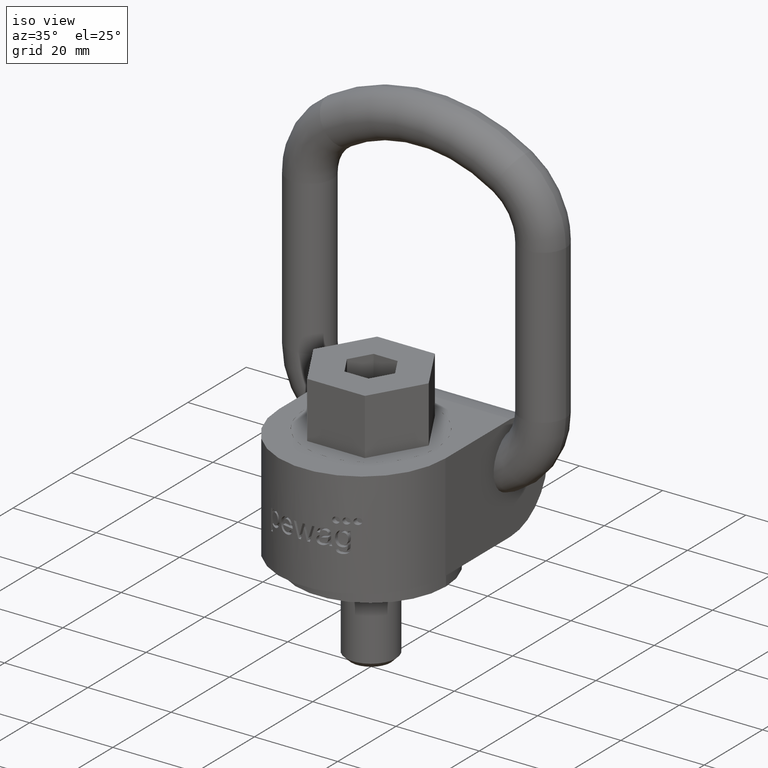
[diagram: clean part render]
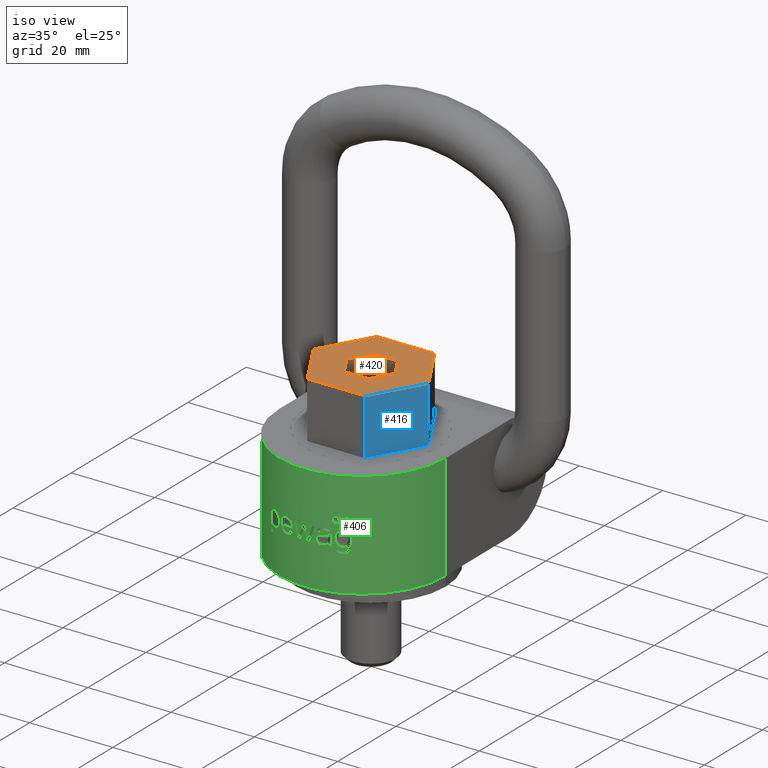
[diagram: same view with three faces highlighted in distinct colors, each labeled with its STEP entity id]
A machine part, iso view with three faces highlighted in distinct colors.
Their STEP definitions:

[orange] entity #420 — the highlighted planar face has unit normal (0, 0, 1).
#358=PLANE('',#2466);
#420=ADVANCED_FACE('',(#583,#584),#358,.T.);
#583=FACE_BOUND('',#651,.T.);
#584=FACE_BOUND('',#652,.T.);
#651=EDGE_LOOP('',(#1248,#1249,#1250,#1251,#1252,#1253));
#652=EDGE_LOOP('',(#1254,#1255,#1256,#1257,#1258,#1259));
#806=LINE('',#3836,#932);
#809=LINE('',#3842,#935);
#811=LINE('',#3846,#937);
#813=LINE('',#3850,#939);
#815=LINE('',#3854,#941);
#816=LINE('',#3856,#942);
#817=LINE('',#3858,#943);
#818=LINE('',#3861,#944);
#819=LINE('',#3863,#945);
#820=LINE('',#3865,#946);
#821=LINE('',#3867,#947);
#822=LINE('',#3869,#948);
#932=VECTOR('',#2657,1.);
#935=VECTOR('',#2662,1.);
#937=VECTOR('',#2666,1.);
#939=VECTOR('',#2670,1.);
#941=VECTOR('',#2674,1.);
#942=VECTOR('',#2677,1.);
#943=VECTOR('',#2680,1.);
#944=VECTOR('',#2681,1.);
#945=VECTOR('',#2682,1.);
#946=VECTOR('',#2683,1.);
#947=VECTOR('',#2684,1.);
#948=VECTOR('',#2685,1.);
#1248=ORIENTED_EDGE('',*,*,#2040,.F.);
#1249=ORIENTED_EDGE('',*,*,#2041,.F.);
#1250=ORIENTED_EDGE('',*,*,#2042,.F.);
#1251=ORIENTED_EDGE('',*,*,#2043,.F.);
#1252=ORIENTED_EDGE('',*,*,#2044,.F.);
#1253=ORIENTED_EDGE('',*,*,#2045,.F.);
#1254=ORIENTED_EDGE('',*,*,#2029,.T.);
#1255=ORIENTED_EDGE('',*,*,#2032,.T.);
#1256=ORIENTED_EDGE('',*,*,#2034,.T.);
#1257=ORIENTED_EDGE('',*,*,#2036,.T.);
#1258=ORIENTED_EDGE('',*,*,#2038,.T.);
#1259=ORIENTED_EDGE('',*,*,#2039,.T.);
#1814=VERTEX_POINT('',#3835);
#1815=VERTEX_POINT('',#3837);
#1816=VERTEX_POINT('',#3841);
#1817=VERTEX_POINT('',#3845);
#1818=VERTEX_POINT('',#3849);
#1819=VERTEX_POINT('',#3853);
#1820=VERTEX_POINT('',#3859);
#1821=VERTEX_POINT('',#3860);
#1822=VERTEX_POINT('',#3862);
#1823=VERTEX_POINT('',#3864);
#1824=VERTEX_POINT('',#3866);
#1825=VERTEX_POINT('',#3868);
#2029=EDGE_CURVE('',#1815,#1814,#806,.T.);
#2032=EDGE_CURVE('',#1814,#1816,#809,.T.);
#2034=EDGE_CURVE('',#1816,#1817,#811,.T.);
#2036=EDGE_CURVE('',#1817,#1818,#813,.T.);
#2038=EDGE_CURVE('',#1818,#1819,#815,.T.);
#2039=EDGE_CURVE('',#1819,#1815,#816,.T.);
#2040=EDGE_CURVE('',#1820,#1821,#817,.T.);
#2041=EDGE_CURVE('',#1822,#1820,#818,.T.);
#2042=EDGE_CURVE('',#1823,#1822,#819,.T.);
#2043=EDGE_CURVE('',#1824,#1823,#820,.T.);
#2044=EDGE_CURVE('',#1825,#1824,#821,.T.);
#2045=EDGE_CURVE('',#1821,#1825,#822,.T.);
#2466=AXIS2_PLACEMENT_3D('',#3870,#2686,#2687);
#2657=DIRECTION('',(0.5,-0.866025403784438,2.50385766456193E-16));
#2662=DIRECTION('',(1.,-1.25192883228097E-16,0.));
#2666=DIRECTION('',(0.5,0.866025403784438,-2.50385766456193E-16));
#2670=DIRECTION('',(-0.5,0.866025403784439,-2.50385766456193E-16));
#2674=DIRECTION('',(-1.,-1.25192883228097E-16,0.));
#2677=DIRECTION('',(-0.5,-0.866025403784438,2.50385766456193E-16));
#2680=DIRECTION('',(0.5,-0.866025403784438,0.));
#2681=DIRECTION('',(-0.5,-0.866025403784438,0.));
#2682=DIRECTION('',(-1.,0.,0.));
#2683=DIRECTION('',(-0.5,0.866025403784438,0.));
#2684=DIRECTION('',(0.5,0.866025403784438,0.));
#2685=DIRECTION('',(1.,0.,0.));
#2686=DIRECTION('',(3.61958389268337E-32,2.89120579329468E-16,1.));
#2687=DIRECTION('',(0.,-1.,2.91433543964104E-16));
#3835=CARTESIAN_POINT('',(-6.92820323027551,-12.,39.));
#3836=CARTESIAN_POINT('',(-13.856406460551,-8.88178419700125E-15,39.));
#3837=CARTESIAN_POINT('',(-13.856406460551,-8.88178419700125E-15,39.));
#3841=CARTESIAN_POINT('',(6.92820323027551,-12.,39.));
#3842=CARTESIAN_POINT('',(-6.92820323027551,-12.,39.));
#3845=CARTESIAN_POINT('',(13.856406460551,-1.21430643318377E-14,39.));
#3846=CARTESIAN_POINT('',(6.92820323027551,-12.,39.));
#3849=CARTESIAN_POINT('',(6.92820323027552,12.,39.));
#3850=CARTESIAN_POINT('',(13.856406460551,-1.06581410364015E-14,39.));
#3853=CARTESIAN_POINT('',(-6.92820323027551,12.,39.));
#3854=CARTESIAN_POINT('',(6.92820323027551,12.,39.));
#3856=CARTESIAN_POINT('',(-6.92820323027551,12.,39.));
#3858=CARTESIAN_POINT('',(-5.77350269189626,0.,39.));
#3859=CARTESIAN_POINT('',(-5.77350269189626,0.,39.));
#3860=CARTESIAN_POINT('',(-2.88675134594813,-5.,39.));
#3861=CARTESIAN_POINT('',(-2.88675134594813,5.,39.));
#3862=CARTESIAN_POINT('',(-2.88675134594813,5.,39.));
#3863=CARTESIAN_POINT('',(2.88675134594813,5.,39.));
#3864=CARTESIAN_POINT('',(2.88675134594813,5.,39.));
#3865=CARTESIAN_POINT('',(5.77350269189626,0.,39.));
#3866=CARTESIAN_POINT('',(5.77350269189626,-8.67361737988404E-16,39.));
#3867=CARTESIAN_POINT('',(2.88675134594813,-5.,39.));
#3868=CARTESIAN_POINT('',(2.88675134594813,-5.,39.));
#3869=CARTESIAN_POINT('',(-2.88675134594813,-5.,39.));
#3870=CARTESIAN_POINT('',(9.22993892634259E-31,7.37257477290143E-15,39.));

[blue] entity #416 — the highlighted planar face has unit normal (-0.866, 0.5, 0).
#249=FACE_OUTER_BOUND('',#647,.T.);
#354=PLANE('',#2462);
#416=ADVANCED_FACE('',(#249),#354,.F.);
#647=EDGE_LOOP('',(#1232,#1233,#1234,#1235));
#803=LINE('',#3830,#929);
#808=LINE('',#3840,#934);
#810=LINE('',#3844,#936);
#811=LINE('',#3846,#937);
#929=VECTOR('',#2652,1.);
#934=VECTOR('',#2661,1.);
#936=VECTOR('',#2665,1.);
#937=VECTOR('',#2666,1.);
#1232=ORIENTED_EDGE('',*,*,#2026,.T.);
#1233=ORIENTED_EDGE('',*,*,#2033,.F.);
#1234=ORIENTED_EDGE('',*,*,#2034,.F.);
#1235=ORIENTED_EDGE('',*,*,#2031,.T.);
#1812=VERTEX_POINT('',#3829);
#1813=VERTEX_POINT('',#3831);
#1816=VERTEX_POINT('',#3841);
#1817=VERTEX_POINT('',#3845);
#2026=EDGE_CURVE('',#1813,#1812,#803,.T.);
#2031=EDGE_CURVE('',#1816,#1813,#808,.T.);
#2033=EDGE_CURVE('',#1817,#1812,#810,.T.);
#2034=EDGE_CURVE('',#1816,#1817,#811,.T.);
#2462=AXIS2_PLACEMENT_3D('',#3847,#2667,#2668);
#2652=DIRECTION('',(0.5,0.866025403784438,-2.50385766456193E-16));
#2661=DIRECTION('',(0.,0.,-1.));
#2665=DIRECTION('',(0.,0.,-1.));
#2666=DIRECTION('',(0.5,0.866025403784438,-2.50385766456193E-16));
#2667=DIRECTION('',(-0.866025403784439,0.5,0.));
#2668=DIRECTION('',(-0.5,-0.866025403784439,0.));
#3829=CARTESIAN_POINT('',(13.856406460551,-1.21430643318377E-14,25.5));
#3830=CARTESIAN_POINT('',(6.92820323027551,-12.,25.5));
#3831=CARTESIAN_POINT('',(6.92820323027551,-12.,25.5));
#3840=CARTESIAN_POINT('',(6.92820323027551,-12.,39.));
#3841=CARTESIAN_POINT('',(6.92820323027551,-12.,39.));
#3844=CARTESIAN_POINT('',(13.856406460551,-1.21430643318377E-14,39.));
#3845=CARTESIAN_POINT('',(13.856406460551,-1.21430643318377E-14,39.));
#3846=CARTESIAN_POINT('',(6.92820323027551,-12.,39.));
#3847=CARTESIAN_POINT('',(6.92820323027551,-12.,39.));

[green] entity #406 — the highlighted cylindrical surface (partial cylindrical patch) has radius 20 mm, axis along (0, -0, -1).
#406=ADVANCED_FACE('',(#566,#567,#568,#569,#570,#571,#572,#573,#574),#535,
 .T.);
#535=CYLINDRICAL_SURFACE('',#2447,20.);
#553=ELLIPSE('',#2422,20.155211608335,20.);
#554=ELLIPSE('',#2423,65.736381129688,20.);
#555=ELLIPSE('',#2425,77.1797237465781,20.);
#556=ELLIPSE('',#2427,78.6263607569451,20.);
#557=ELLIPSE('',#2429,67.0419076215237,20.);
#558=ELLIPSE('',#2431,74.2215042638997,20.);
#559=ELLIPSE('',#2432,80.7307963171643,20.);
#560=ELLIPSE('',#2433,75.1711480642549,20.);
#561=ELLIPSE('',#2435,79.0294785609175,20.);
#562=ELLIPSE('',#2437,69.6178658417018,20.);
#563=ELLIPSE('',#2440,20.2262363425178,20.);
#564=ELLIPSE('',#2441,20.1713467170009,20.);
#565=ELLIPSE('',#2442,20.2757128906475,20.);
#566=FACE_BOUND('',#625,.T.);
#567=FACE_BOUND('',#626,.T.);
#568=FACE_BOUND('',#627,.T.);
#569=FACE_BOUND('',#628,.T.);
#570=FACE_BOUND('',#629,.T.);
#571=FACE_BOUND('',#630,.T.);
#572=FACE_BOUND('',#631,.T.);
#573=FACE_BOUND('',#632,.T.);
#574=FACE_BOUND('',#633,.T.);
#625=EDGE_LOOP('',(#1120,#1121,#1122,#1123,#1124,#1125,#1126,#1127,#1128,
#1129));
#626=EDGE_LOOP('',(#1130,#1131,#1132,#1133,#1134,#1135,#1136,#1137,#1138));
#627=EDGE_LOOP('',(#1139,#1140,#1141,#1142,#1143,#1144,#1145,#1146,#1147,
#1148,#1149,#1150,#1151,#1152,#1153,#1154,#1155,#1156,#1157));
#628=EDGE_LOOP('',(#1158,#1159,#1160,#1161,#1162,#1163,#1164,#1165,#1166,
#1167,#1168,#1169,#1170,#1171,#1172,#1173,#1174));
#629=EDGE_LOOP('',(#1175,#1176,#1177,#1178,#1179,#1180,#1181,#1182,#1183,
#1184,#1185));
#630=EDGE_LOOP('',(#1186));
#631=EDGE_LOOP('',(#1187,#1188,#1189,#1190));
#632=EDGE_LOOP('',(#1191));
#633=EDGE_LOOP('',(#1192));
#787=LINE('',#3044,#913);
#788=LINE('',#3048,#914);
#789=LINE('',#3052,#915);
#790=LINE('',#3608,#916);
#791=LINE('',#3673,#917);
#792=LINE('',#3677,#918);
#913=VECTOR('',#2554,1.);
#914=VECTOR('',#2557,1.);
#915=VECTOR('',#2560,1.);
#916=VECTOR('',#2609,1.);
#917=VECTOR('',#2614,1.);
#918=VECTOR('',#2617,1.);
#1084=CIRCLE('',#2417,20.);
#1085=CIRCLE('',#2418,20.);
#1086=CIRCLE('',#2419,20.);
#1087=CIRCLE('',#2420,20.);
#1088=CIRCLE('',#2421,20.);
#1089=CIRCLE('',#2424,20.);
#1090=CIRCLE('',#2426,20.);
#1091=CIRCLE('',#2428,20.);
#1092=CIRCLE('',#2430,20.);
#1093=CIRCLE('',#2434,20.);
#1094=CIRCLE('',#2436,20.);
#1095=CIRCLE('',#2438,20.);
#1096=CIRCLE('',#2439,20.);
#1097=CIRCLE('',#2443,20.);
#1098=CIRCLE('',#2444,20.);
#1099=CIRCLE('',#2445,20.);
#1100=CIRCLE('',#2446,20.);
#1120=ORIENTED_EDGE('',*,*,#1938,.F.);
#1121=ORIENTED_EDGE('',*,*,#1939,.F.);
#1122=ORIENTED_EDGE('',*,*,#1940,.F.);
#1123=ORIENTED_EDGE('',*,*,#1941,.F.);
#1124=ORIENTED_EDGE('',*,*,#1942,.F.);
#1125=ORIENTED_EDGE('',*,*,#1943,.F.);
#1126=ORIENTED_EDGE('',*,*,#1944,.F.);
#1127=ORIENTED_EDGE('',*,*,#1945,.F.);
#1128=ORIENTED_EDGE('',*,*,#1946,.F.);
#1129=ORIENTED_EDGE('',*,*,#1947,.F.);
#1130=ORIENTED_EDGE('',*,*,#1948,.F.);
#1131=ORIENTED_EDGE('',*,*,#1949,.F.);
#1132=ORIENTED_EDGE('',*,*,#1950,.F.);
#1133=ORIENTED_EDGE('',*,*,#1951,.F.);
#1134=ORIENTED_EDGE('',*,*,#1952,.F.);
#1135=ORIENTED_EDGE('',*,*,#1953,.F.);
#1136=ORIENTED_EDGE('',*,*,#1954,.F.);
#1137=ORIENTED_EDGE('',*,*,#1955,.F.);
#1138=ORIENTED_EDGE('',*,*,#1956,.F.);
#1139=ORIENTED_EDGE('',*,*,#1957,.F.);
#1140=ORIENTED_EDGE('',*,*,#1958,.F.);
#1141=ORIENTED_EDGE('',*,*,#1959,.F.);
#1142=ORIENTED_EDGE('',*,*,#1960,.F.);
#1143=ORIENTED_EDGE('',*,*,#1961,.F.);
#1144=ORIENTED_EDGE('',*,*,#1962,.F.);
#1145=ORIENTED_EDGE('',*,*,#1963,.F.);
#1146=ORIENTED_EDGE('',*,*,#1964,.F.);
#1147=ORIENTED_EDGE('',*,*,#1965,.F.);
#1148=ORIENTED_EDGE('',*,*,#1966,.F.);
#1149=ORIENTED_EDGE('',*,*,#1967,.F.);
#1150=ORIENTED_EDGE('',*,*,#1968,.F.);
#1151=ORIENTED_EDGE('',*,*,#1969,.F.);
#1152=ORIENTED_EDGE('',*,*,#1970,.F.);
#1153=ORIENTED_EDGE('',*,*,#1971,.F.);
#1154=ORIENTED_EDGE('',*,*,#1972,.F.);
#1155=ORIENTED_EDGE('',*,*,#1973,.F.);
#1156=ORIENTED_EDGE('',*,*,#1974,.F.);
#1157=ORIENTED_EDGE('',*,*,#1975,.F.);
#1158=ORIENTED_EDGE('',*,*,#1976,.F.);
#1159=ORIENTED_EDGE('',*,*,#1977,.F.);
#1160=ORIENTED_EDGE('',*,*,#1978,.F.);
#1161=ORIENTED_EDGE('',*,*,#1979,.F.);
#1162=ORIENTED_EDGE('',*,*,#1980,.F.);
#1163=ORIENTED_EDGE('',*,*,#1981,.F.);
#1164=ORIENTED_EDGE('',*,*,#1982,.F.);
#1165=ORIENTED_EDGE('',*,*,#1983,.F.);
#1166=ORIENTED_EDGE('',*,*,#1984,.F.);
#1167=ORIENTED_EDGE('',*,*,#1985,.F.);
#1168=ORIENTED_EDGE('',*,*,#1986,.F.);
#1169=ORIENTED_EDGE('',*,*,#1987,.F.);
#1170=ORIENTED_EDGE('',*,*,#1988,.F.);
#1171=ORIENTED_EDGE('',*,*,#1989,.F.);
#1172=ORIENTED_EDGE('',*,*,#1990,.F.);
#1173=ORIENTED_EDGE('',*,*,#1991,.F.);
#1174=ORIENTED_EDGE('',*,*,#1992,.F.);
#1175=ORIENTED_EDGE('',*,*,#1993,.F.);
#1176=ORIENTED_EDGE('',*,*,#1994,.F.);
#1177=ORIENTED_EDGE('',*,*,#1995,.F.);
#1178=ORIENTED_EDGE('',*,*,#1996,.F.);
#1179=ORIENTED_EDGE('',*,*,#1997,.F.);
#1180=ORIENTED_EDGE('',*,*,#1998,.F.);
#1181=ORIENTED_EDGE('',*,*,#1999,.F.);
#1182=ORIENTED_EDGE('',*,*,#2000,.F.);
#1183=ORIENTED_EDGE('',*,*,#2001,.F.);
#1184=ORIENTED_EDGE('',*,*,#2002,.F.);
#1185=ORIENTED_EDGE('',*,*,#2003,.F.);
#1186=ORIENTED_EDGE('',*,*,#2004,.T.);
#1187=ORIENTED_EDGE('',*,*,#2005,.F.);
#1188=ORIENTED_EDGE('',*,*,#2006,.F.);
#1189=ORIENTED_EDGE('',*,*,#2007,.F.);
#1190=ORIENTED_EDGE('',*,*,#2008,.F.);
#1191=ORIENTED_EDGE('',*,*,#2009,.T.);
#1192=ORIENTED_EDGE('',*,*,#2010,.T.);
#1728=VERTEX_POINT('',#3000);
#1729=VERTEX_POINT('',#3001);
#1730=VERTEX_POINT('',#3012);
#1731=VERTEX_POINT('',#3041);
#1732=VERTEX_POINT('',#3043);
#1733=VERTEX_POINT('',#3045);
#1734=VERTEX_POINT('',#3047);
#1735=VERTEX_POINT('',#3049);
#1736=VERTEX_POINT('',#3051);
#1737=VERTEX_POINT('',#3053);
#1738=VERTEX_POINT('',#3056);
#1739=VERTEX_POINT('',#3057);
#1740=VERTEX_POINT('',#3068);
#1741=VERTEX_POINT('',#3085);
#1742=VERTEX_POINT('',#3096);
#1743=VERTEX_POINT('',#3098);
#1744=VERTEX_POINT('',#3109);
#1745=VERTEX_POINT('',#3126);
#1746=VERTEX_POINT('',#3158);
#1747=VERTEX_POINT('',#3170);
#1748=VERTEX_POINT('',#3171);
#1749=VERTEX_POINT('',#3173);
#1750=VERTEX_POINT('',#3175);
#1751=VERTEX_POINT('',#3240);
#1752=VERTEX_POINT('',#3251);
#1753=VERTEX_POINT('',#3253);
#1754=VERTEX_POINT('',#3255);
#1755=VERTEX_POINT('',#3257);
#1756=VERTEX_POINT('',#3259);
#1757=VERTEX_POINT('',#3261);
#1758=VERTEX_POINT('',#3263);
#1759=VERTEX_POINT('',#3265);
#1760=VERTEX_POINT('',#3267);
#1761=VERTEX_POINT('',#3269);
#1762=VERTEX_POINT('',#3271);
#1763=VERTEX_POINT('',#3282);
#1764=VERTEX_POINT('',#3284);
#1765=VERTEX_POINT('',#3286);
#1766=VERTEX_POINT('',#3289);
#1767=VERTEX_POINT('',#3290);
#1768=VERTEX_POINT('',#3301);
#1769=VERTEX_POINT('',#3333);
#1770=VERTEX_POINT('',#3344);
#1771=VERTEX_POINT('',#3346);
#1772=VERTEX_POINT('',#3357);
#1773=VERTEX_POINT('',#3368);
#1774=VERTEX_POINT('',#3379);
#1775=VERTEX_POINT('',#3390);
#1776=VERTEX_POINT('',#3401);
#1777=VERTEX_POINT('',#3412);
#1778=VERTEX_POINT('',#3414);
#1779=VERTEX_POINT('',#3425);
#1780=VERTEX_POINT('',#3439);
#1781=VERTEX_POINT('',#3450);
#1782=VERTEX_POINT('',#3461);
#1783=VERTEX_POINT('',#3482);
#1784=VERTEX_POINT('',#3483);
#1785=VERTEX_POINT('',#3503);
#1786=VERTEX_POINT('',#3517);
#1787=VERTEX_POINT('',#3519);
#1788=VERTEX_POINT('',#3530);
#1789=VERTEX_POINT('',#3544);
#1790=VERTEX_POINT('',#3558);
#1791=VERTEX_POINT('',#3605);
#1792=VERTEX_POINT('',#3607);
#1793=VERTEX_POINT('',#3609);
#1794=VERTEX_POINT('',#3669);
#1795=VERTEX_POINT('',#3671);
#1796=VERTEX_POINT('',#3672);
#1797=VERTEX_POINT('',#3674);
#1798=VERTEX_POINT('',#3676);
#1799=VERTEX_POINT('',#3736);
#1800=VERTEX_POINT('',#3795);
#1938=EDGE_CURVE('',#1728,#1729,#2242,.T.);
#1939=EDGE_CURVE('',#1730,#1728,#2243,.T.);
#1940=EDGE_CURVE('',#1731,#1730,#2244,.T.);
#1941=EDGE_CURVE('',#1732,#1731,#1084,.T.);
#1942=EDGE_CURVE('',#1733,#1732,#787,.T.);
#1943=EDGE_CURVE('',#1734,#1733,#1085,.T.);
#1944=EDGE_CURVE('',#1735,#1734,#788,.T.);
#1945=EDGE_CURVE('',#1736,#1735,#1086,.T.);
#1946=EDGE_CURVE('',#1737,#1736,#789,.T.);
#1947=EDGE_CURVE('',#1729,#1737,#1087,.T.);
#1948=EDGE_CURVE('',#1738,#1739,#1088,.T.);
#1949=EDGE_CURVE('',#1740,#1738,#2245,.T.);
#1950=EDGE_CURVE('',#1741,#1740,#2246,.T.);
#1951=EDGE_CURVE('',#1742,#1741,#2247,.T.);
#1952=EDGE_CURVE('',#1743,#1742,#553,.T.);
#1953=EDGE_CURVE('',#1744,#1743,#2248,.T.);
#1954=EDGE_CURVE('',#1745,#1744,#2249,.T.);
#1955=EDGE_CURVE('',#1746,#1745,#2250,.T.);
#1956=EDGE_CURVE('',#1739,#1746,#2251,.T.);
#1957=EDGE_CURVE('',#1747,#1748,#554,.T.);
#1958=EDGE_CURVE('',#1749,#1747,#1089,.T.);
#1959=EDGE_CURVE('',#1750,#1749,#555,.T.);
#1960=EDGE_CURVE('',#1751,#1750,#2252,.T.);
#1961=EDGE_CURVE('',#1752,#1751,#2253,.T.);
#1962=EDGE_CURVE('',#1753,#1752,#1090,.T.);
#1963=EDGE_CURVE('',#1754,#1753,#556,.T.);
#1964=EDGE_CURVE('',#1755,#1754,#1091,.T.);
#1965=EDGE_CURVE('',#1756,#1755,#557,.T.);
#1966=EDGE_CURVE('',#1757,#1756,#1092,.T.);
#1967=EDGE_CURVE('',#1758,#1757,#558,.T.);
#1968=EDGE_CURVE('',#1759,#1758,#559,.T.);
#1969=EDGE_CURVE('',#1760,#1759,#560,.T.);
#1970=EDGE_CURVE('',#1761,#1760,#1093,.T.);
#1971=EDGE_CURVE('',#1762,#1761,#561,.T.);
#1972=EDGE_CURVE('',#1763,#1762,#2254,.T.);
#1973=EDGE_CURVE('',#1764,#1763,#1094,.T.);
#1974=EDGE_CURVE('',#1765,#1764,#562,.T.);
#1975=EDGE_CURVE('',#1748,#1765,#1095,.T.);
#1976=EDGE_CURVE('',#1766,#1767,#1096,.T.);
#1977=EDGE_CURVE('',#1768,#1766,#2255,.T.);
#1978=EDGE_CURVE('',#1769,#1768,#2256,.T.);
#1979=EDGE_CURVE('',#1770,#1769,#2257,.T.);
#1980=EDGE_CURVE('',#1771,#1770,#563,.T.);
#1981=EDGE_CURVE('',#1772,#1771,#2258,.T.);
#1982=EDGE_CURVE('',#1773,#1772,#2259,.T.);
#1983=EDGE_CURVE('',#1774,#1773,#2260,.T.);
#1984=EDGE_CURVE('',#1775,#1774,#2261,.T.);
#1985=EDGE_CURVE('',#1776,#1775,#2262,.T.);
#1986=EDGE_CURVE('',#1777,#1776,#2263,.T.);
#1987=EDGE_CURVE('',#1778,#1777,#564,.T.);
#1988=EDGE_CURVE('',#1779,#1778,#2264,.T.);
#1989=EDGE_CURVE('',#1780,#1779,#2265,.T.);
#1990=EDGE_CURVE('',#1781,#1780,#2266,.T.);
#1991=EDGE_CURVE('',#1782,#1781,#2267,.T.);
#1992=EDGE_CURVE('',#1767,#1782,#2268,.T.);
#1993=EDGE_CURVE('',#1783,#1784,#2269,.T.);
#1994=EDGE_CURVE('',#1785,#1783,#2270,.T.);
#1995=EDGE_CURVE('',#1786,#1785,#2271,.T.);
#1996=EDGE_CURVE('',#1787,#1786,#565,.T.);
#1997=EDGE_CURVE('',#1788,#1787,#2272,.T.);
#1998=EDGE_CURVE('',#1789,#1788,#2273,.T.);
#1999=EDGE_CURVE('',#1790,#1789,#2274,.T.);
#2000=EDGE_CURVE('',#1791,#1790,#2275,.T.);
#2001=EDGE_CURVE('',#1792,#1791,#1097,.T.);
#2002=EDGE_CURVE('',#1793,#1792,#790,.T.);
#2003=EDGE_CURVE('',#1784,#1793,#1098,.T.);
#2004=EDGE_CURVE('',#1794,#1794,#2276,.T.);
#2005=EDGE_CURVE('',#1795,#1796,#1099,.T.);
#2006=EDGE_CURVE('',#1797,#1795,#791,.T.);
#2007=EDGE_CURVE('',#1798,#1797,#1100,.T.);
#2008=EDGE_CURVE('',#1796,#1798,#792,.T.);
#2009=EDGE_CURVE('',#1799,#1799,#2277,.T.);
#2010=EDGE_CURVE('',#1800,#1800,#2278,.T.);
#2242=B_SPLINE_CURVE_WITH_KNOTS('',3,(#2990,#2991,#2992,#2993,#2994,#2995,
#2996,#2997,#2998,#2999),.UNSPECIFIED.,.F.,.F.,(4,3,3,4),(0.,0.391657797747274,
0.694208532104586,1.),.UNSPECIFIED.);
#2243=B_SPLINE_CURVE_WITH_KNOTS('',3,(#3002,#3003,#3004,#3005,#3006,#3007,
#3008,#3009,#3010,#3011),.UNSPECIFIED.,.F.,.F.,(4,3,3,4),(0.,0.352238037569726,
0.705837311240712,1.),.UNSPECIFIED.);
#2244=B_SPLINE_CURVE_WITH_KNOTS('',3,(#3013,#3014,#3015,#3016,#3017,#3018,
#3019,#3020,#3021,#3022,#3023,#3024,#3025,#3026,#3027,#3028,#3029,#3030,
#3031,#3032,#3033,#3034,#3035,#3036,#3037,#3038,#3039,#3040),
 .UNSPECIFIED.,.F.,.F.,(4,3,3,3,3,3,3,3,3,4),(0.,0.090524893395307,0.168768946938943,
0.262343208688417,0.356493992292622,0.443257919153376,0.542905133014062,
0.677139243652386,0.866918457224576,1.),.UNSPECIFIED.);
#2245=B_SPLINE_CURVE_WITH_KNOTS('',3,(#3058,#3059,#3060,#3061,#3062,#3063,
#3064,#3065,#3066,#3067),.UNSPECIFIED.,.F.,.F.,(4,3,3,4),(0.,0.247240170800066,
0.663841143719338,1.),.UNSPECIFIED.);
#2246=B_SPLINE_CURVE_WITH_KNOTS('',3,(#3069,#3070,#3071,#3072,#3073,#3074,
#3075,#3076,#3077,#3078,#3079,#3080,#3081,#3082,#3083,#3084),
 .UNSPECIFIED.,.F.,.F.,(4,3,3,3,3,4),(0.,0.198766169573321,0.39563469344651,
0.634969042155861,0.906976755550897,1.),.UNSPECIFIED.);
#2247=B_SPLINE_CURVE_WITH_KNOTS('',3,(#3086,#3087,#3088,#3089,#3090,#3091,
#3092,#3093,#3094,#3095),.UNSPECIFIED.,.F.,.F.,(4,3,3,4),(0.,0.291582744666726,
0.583827807706864,1.),.UNSPECIFIED.);
#2248=B_SPLINE_CURVE_WITH_KNOTS('',3,(#3099,#3100,#3101,#3102,#3103,#3104,
#3105,#3106,#3107,#3108),.UNSPECIFIED.,.F.,.F.,(4,3,3,4),(0.,0.279743626133196,
0.746666449623446,1.),.UNSPECIFIED.);
#2249=B_SPLINE_CURVE_WITH_KNOTS('',3,(#3110,#3111,#3112,#3113,#3114,#3115,
#3116,#3117,#3118,#3119,#3120,#3121,#3122,#3123,#3124,#3125),
 .UNSPECIFIED.,.F.,.F.,(4,3,3,3,3,4),(0.,0.203862272098561,0.406656114901396,
0.720007632425501,0.924503863407837,1.),.UNSPECIFIED.);
#2250=B_SPLINE_CURVE_WITH_KNOTS('',3,(#3127,#3128,#3129,#3130,#3131,#3132,
#3133,#3134,#3135,#3136,#3137,#3138,#3139,#3140,#3141,#3142,#3143,#3144,
#3145,#3146,#3147,#3148,#3149,#3150,#3151,#3152,#3153,#3154,#3155,#3156,
#3157),.UNSPECIFIED.,.F.,.F.,(4,3,3,3,3,3,3,3,3,3,4),(0.,0.103512007964935,
0.193899697201355,0.278195108082369,0.37758567317904,0.459701063740595,
0.541736966606866,0.628790824986065,0.75883382452031,0.895694136286063,
1.),.UNSPECIFIED.);
#2251=B_SPLINE_CURVE_WITH_KNOTS('',3,(#3159,#3160,#3161,#3162,#3163,#3164,
#3165,#3166,#3167,#3168),.UNSPECIFIED.,.F.,.F.,(4,3,3,4),(0.,0.326762048751428,
0.655781069521525,1.),.UNSPECIFIED.);
#2252=B_SPLINE_CURVE_WITH_KNOTS('',3,(#3176,#3177,#3178,#3179,#3180,#3181,
#3182,#3183,#3184,#3185,#3186,#3187,#3188,#3189,#3190,#3191,#3192,#3193,
#3194,#3195,#3196,#3197,#3198,#3199,#3200,#3201,#3202,#3203,#3204,#3205,
#3206,#3207,#3208,#3209,#3210,#3211,#3212,#3213,#3214,#3215,#3216,#3217,
#3218,#3219,#3220,#3221,#3222,#3223,#3224,#3225,#3226,#3227,#3228,#3229,
#3230,#3231,#3232,#3233,#3234,#3235,#3236,#3237,#3238,#3239),
 .UNSPECIFIED.,.F.,.F.,(4,3,3,3,3,3,3,3,3,3,3,3,3,3,3,3,3,3,3,3,3,4),(0.,
0.49955331586518,0.749371457656554,0.834029702781453,0.889946163446528,
0.926899980438971,0.951339488322529,0.967517620447377,0.978239999313506,
0.985357926739187,0.990093338017921,0.993253012252823,0.995369807961951,
0.996795785888032,0.997763616318925,0.998427273433976,0.998888982349358,
0.999371387650682,0.999590041158744,0.999773233031211,0.999908554282084,
1.),.UNSPECIFIED.);
#2253=B_SPLINE_CURVE_WITH_KNOTS('',3,(#3241,#3242,#3243,#3244,#3245,#3246,
#3247,#3248,#3249,#3250),.UNSPECIFIED.,.F.,.F.,(4,3,3,4),(0.,0.133710786362415,
0.66225942820563,1.),.UNSPECIFIED.);
#2254=B_SPLINE_CURVE_WITH_KNOTS('',3,(#3272,#3273,#3274,#3275,#3276,#3277,
#3278,#3279,#3280,#3281),.UNSPECIFIED.,.F.,.F.,(4,3,3,4),(0.,0.284451124598534,
0.642221045653083,1.),.UNSPECIFIED.);
#2255=B_SPLINE_CURVE_WITH_KNOTS('',3,(#3291,#3292,#3293,#3294,#3295,#3296,
#3297,#3298,#3299,#3300),.UNSPECIFIED.,.F.,.F.,(4,3,3,4),(0.,0.298107772476781,
0.596459384136435,1.),.UNSPECIFIED.);
#2256=B_SPLINE_CURVE_WITH_KNOTS('',3,(#3302,#3303,#3304,#3305,#3306,#3307,
#3308,#3309,#3310,#3311,#3312,#3313,#3314,#3315,#3316,#3317,#3318,#3319,
#3320,#3321,#3322,#3323,#3324,#3325,#3326,#3327,#3328,#3329,#3330,#3331,
#3332),.UNSPECIFIED.,.F.,.F.,(4,3,3,3,3,3,3,3,3,3,4),(0.,0.0780122411292485,
0.156314956137172,0.252221628366138,0.327487061806907,0.402822724376461,
0.479618288086529,0.58975970012596,0.751045473062088,0.90988442735011,1.),
 .UNSPECIFIED.);
#2257=B_SPLINE_CURVE_WITH_KNOTS('',3,(#3334,#3335,#3336,#3337,#3338,#3339,
#3340,#3341,#3342,#3343),.UNSPECIFIED.,.F.,.F.,(4,3,3,4),(0.,0.336609162967314,
0.658853350552495,1.),.UNSPECIFIED.);
#2258=B_SPLINE_CURVE_WITH_KNOTS('',3,(#3347,#3348,#3349,#3350,#3351,#3352,
#3353,#3354,#3355,#3356),.UNSPECIFIED.,.F.,.F.,(4,3,3,4),(0.,0.296612768273015,
0.593035536686837,1.),.UNSPECIFIED.);
#2259=B_SPLINE_CURVE_WITH_KNOTS('',3,(#3358,#3359,#3360,#3361,#3362,#3363,
#3364,#3365,#3366,#3367),.UNSPECIFIED.,.F.,.F.,(4,3,3,4),(0.,0.354196373045441,
0.676989757518127,1.),.UNSPECIFIED.);
#2260=B_SPLINE_CURVE_WITH_KNOTS('',3,(#3369,#3370,#3371,#3372,#3373,#3374,
#3375,#3376,#3377,#3378),.UNSPECIFIED.,.F.,.F.,(4,3,3,4),(0.,0.284062316950155,
0.568435846262543,1.),.UNSPECIFIED.);
#2261=B_SPLINE_CURVE_WITH_KNOTS('',3,(#3380,#3381,#3382,#3383,#3384,#3385,
#3386,#3387,#3388,#3389),.UNSPECIFIED.,.F.,.F.,(4,3,3,4),(0.,0.294807138526076,
0.590298925498006,1.),.UNSPECIFIED.);
#2262=B_SPLINE_CURVE_WITH_KNOTS('',3,(#3391,#3392,#3393,#3394,#3395,#3396,
#3397,#3398,#3399,#3400),.UNSPECIFIED.,.F.,.F.,(4,3,3,4),(0.,0.2788558676105,
0.735722394139013,1.),.UNSPECIFIED.);
#2263=B_SPLINE_CURVE_WITH_KNOTS('',3,(#3402,#3403,#3404,#3405,#3406,#3407,
#3408,#3409,#3410,#3411),.UNSPECIFIED.,.F.,.F.,(4,3,3,4),(0.,0.324752376652687,
0.768673925460954,1.),.UNSPECIFIED.);
#2264=B_SPLINE_CURVE_WITH_KNOTS('',3,(#3415,#3416,#3417,#3418,#3419,#3420,
#3421,#3422,#3423,#3424),.UNSPECIFIED.,.F.,.F.,(4,3,3,4),(0.,0.276746719904191,
0.659623398338795,1.),.UNSPECIFIED.);
#2265=B_SPLINE_CURVE_WITH_KNOTS('',3,(#3426,#3427,#3428,#3429,#3430,#3431,
#3432,#3433,#3434,#3435,#3436,#3437,#3438),.UNSPECIFIED.,.F.,.F.,(4,3,3,
3,4),(0.,0.169752759976959,0.616422555181201,0.88035264521153,1.),
 .UNSPECIFIED.);
#2266=B_SPLINE_CURVE_WITH_KNOTS('',3,(#3440,#3441,#3442,#3443,#3444,#3445,
#3446,#3447,#3448,#3449),.UNSPECIFIED.,.F.,.F.,(4,3,3,4),(0.,0.26045329019797,
0.651117404602227,1.),.UNSPECIFIED.);
#2267=B_SPLINE_CURVE_WITH_KNOTS('',3,(#3451,#3452,#3453,#3454,#3455,#3456,
#3457,#3458,#3459,#3460),.UNSPECIFIED.,.F.,.F.,(4,3,3,4),(0.,0.285271385879726,
0.641607229579715,1.),.UNSPECIFIED.);
#2268=B_SPLINE_CURVE_WITH_KNOTS('',3,(#3462,#3463,#3464,#3465,#3466,#3467,
#3468,#3469,#3470,#3471),.UNSPECIFIED.,.F.,.F.,(4,3,3,4),(0.,0.264702455054184,
0.529532191004715,1.),.UNSPECIFIED.);
#2269=B_SPLINE_CURVE_WITH_KNOTS('',3,(#3472,#3473,#3474,#3475,#3476,#3477,
#3478,#3479,#3480,#3481),.UNSPECIFIED.,.F.,.F.,(4,3,3,4),(0.,0.14656707812561,
0.470503150225438,1.),.UNSPECIFIED.);
#2270=B_SPLINE_CURVE_WITH_KNOTS('',3,(#3484,#3485,#3486,#3487,#3488,#3489,
#3490,#3491,#3492,#3493,#3494,#3495,#3496,#3497,#3498,#3499,#3500,#3501,
#3502),.UNSPECIFIED.,.F.,.F.,(4,3,3,3,3,3,4),(0.,0.191184255901727,0.449337348737335,
0.67179729441807,0.828129636679729,0.957888930864528,1.),.UNSPECIFIED.);
#2271=B_SPLINE_CURVE_WITH_KNOTS('',3,(#3504,#3505,#3506,#3507,#3508,#3509,
#3510,#3511,#3512,#3513,#3514,#3515,#3516),.UNSPECIFIED.,.F.,.F.,(4,3,3,
3,4),(0.,0.401043475483815,0.633320924333606,0.866741825313133,1.),
 .UNSPECIFIED.);
#2272=B_SPLINE_CURVE_WITH_KNOTS('',3,(#3520,#3521,#3522,#3523,#3524,#3525,
#3526,#3527,#3528,#3529),.UNSPECIFIED.,.F.,.F.,(4,3,3,4),(0.,0.256741034377314,
0.614734922498121,1.),.UNSPECIFIED.);
#2273=B_SPLINE_CURVE_WITH_KNOTS('',3,(#3531,#3532,#3533,#3534,#3535,#3536,
#3537,#3538,#3539,#3540,#3541,#3542,#3543),.UNSPECIFIED.,.F.,.F.,(4,3,3,
3,4),(0.,0.199350171071178,0.498071015390837,0.843112996930381,1.),
 .UNSPECIFIED.);
#2274=B_SPLINE_CURVE_WITH_KNOTS('',3,(#3545,#3546,#3547,#3548,#3549,#3550,
#3551,#3552,#3553,#3554,#3555,#3556,#3557),.UNSPECIFIED.,.F.,.F.,(4,3,3,
3,4),(0.,0.368966348729244,0.743470048428437,0.957910841717719,1.),
 .UNSPECIFIED.);
#2275=B_SPLINE_CURVE_WITH_KNOTS('',3,(#3559,#3560,#3561,#3562,#3563,#3564,
#3565,#3566,#3567,#3568,#3569,#3570,#3571,#3572,#3573,#3574,#3575,#3576,
#3577,#3578,#3579,#3580,#3581,#3582,#3583,#3584,#3585,#3586,#3587,#3588,
#3589,#3590,#3591,#3592,#3593,#3594,#3595,#3596,#3597,#3598,#3599,#3600,
#3601,#3602,#3603,#3604),.UNSPECIFIED.,.F.,.F.,(4,3,3,3,3,3,3,3,3,3,3,3,
3,3,3,4),(0.,0.0693455366971935,0.131181607699315,0.203672485315946,0.2608790312446,
0.318211849546145,0.39464874371436,0.490824651035636,0.590098287636913,
0.666939584909755,0.731168834752846,0.796085378360996,0.866356182898309,
0.92240077322994,0.978520980008,1.),.UNSPECIFIED.);
#2276=B_SPLINE_CURVE_WITH_KNOTS('',3,(#3611,#3612,#3613,#3614,#3615,#3616,
#3617,#3618,#3619,#3620,#3621,#3622,#3623,#3624,#3625,#3626,#3627,#3628,
#3629,#3630,#3631,#3632,#3633,#3634,#3635,#3636,#3637,#3638,#3639,#3640,
#3641,#3642,#3643,#3644,#3645,#3646,#3647,#3648,#3649,#3650,#3651,#3652,
#3653,#3654,#3655,#3656,#3657,#3658,#3659,#3660,#3661,#3662,#3663,#3664,
#3665,#3666,#3667,#3668),.UNSPECIFIED.,.T.,.F.,(1,3,3,3,3,3,3,3,3,3,3,3,
3,3,3,3,3,3,3,3,3,1),(-0.0367073868415174,0.,0.0609914840100629,0.122231249399369,
0.179301292083766,0.230755369736955,0.278391120314943,0.32487818972659,
0.372681240418363,0.423792491215211,0.479527479500675,0.539959743675109,
0.603004205015673,0.66412453132678,0.718757726555896,0.766536662648829,
0.811206380762681,0.857057487616174,0.907225610016424,0.963292613158483,
1.,1.06099148401006),.UNSPECIFIED.);
#2277=B_SPLINE_CURVE_WITH_KNOTS('',3,(#3678,#3679,#3680,#3681,#3682,#3683,
#3684,#3685,#3686,#3687,#3688,#3689,#3690,#3691,#3692,#3693,#3694,#3695,
#3696,#3697,#3698,#3699,#3700,#3701,#3702,#3703,#3704,#3705,#3706,#3707,
#3708,#3709,#3710,#3711,#3712,#3713,#3714,#3715,#3716,#3717,#3718,#3719,
#3720,#3721,#3722,#3723,#3724,#3725,#3726,#3727,#3728,#3729,#3730,#3731,
#3732,#3733,#3734,#3735),.UNSPECIFIED.,.T.,.F.,(1,3,3,3,3,3,3,3,3,3,3,3,
3,3,3,3,3,3,3,3,3,1),(-0.0367197482967924,0.,0.0576245706939579,0.115380338516388,
0.170999496159537,0.22356569032424,0.273920264410147,0.323453498183325,
0.373593188642526,0.425570256117129,0.480210313262633,0.537583476956382,
0.596550106951983,0.654679211305302,0.709389457177727,0.759995746809845,
0.808271178746388,0.856951409014801,0.908279432979368,0.963280251703208,
1.,1.05762457069396),.UNSPECIFIED.);
#2278=B_SPLINE_CURVE_WITH_KNOTS('',3,(#3737,#3738,#3739,#3740,#3741,#3742,
#3743,#3744,#3745,#3746,#3747,#3748,#3749,#3750,#3751,#3752,#3753,#3754,
#3755,#3756,#3757,#3758,#3759,#3760,#3761,#3762,#3763,#3764,#3765,#3766,
#3767,#3768,#3769,#3770,#3771,#3772,#3773,#3774,#3775,#3776,#3777,#3778,
#3779,#3780,#3781,#3782,#3783,#3784,#3785,#3786,#3787,#3788,#3789,#3790,
#3791,#3792,#3793,#3794),.UNSPECIFIED.,.T.,.F.,(1,3,3,3,3,3,3,3,3,3,3,3,
3,3,3,3,3,3,3,3,3,1),(-0.0659954067426742,0.,0.0748415571720547,0.141559223989639,
0.189406139175089,0.237532672015933,0.28131226716205,0.323847856577256,
0.368697963810671,0.418673756299005,0.475805103754143,0.540469776596687,
0.609516497803679,0.662909236118808,0.707889954346456,0.753174917817908,
0.793903464076126,0.834776206969873,0.880423710865826,0.934004593257326,
1.,1.07484155717205),.UNSPECIFIED.);
#2417=AXIS2_PLACEMENT_3D('',#3042,#2552,#2553);
#2418=AXIS2_PLACEMENT_3D('',#3046,#2555,#2556);
#2419=AXIS2_PLACEMENT_3D('',#3050,#2558,#2559);
#2420=AXIS2_PLACEMENT_3D('',#3054,#2561,#2562);
#2421=AXIS2_PLACEMENT_3D('',#3055,#2563,#2564);
#2422=AXIS2_PLACEMENT_3D('',#3097,#2565,#2566);
#2423=AXIS2_PLACEMENT_3D('',#3169,#2567,#2568);
#2424=AXIS2_PLACEMENT_3D('',#3172,#2569,#2570);
#2425=AXIS2_PLACEMENT_3D('',#3174,#2571,#2572);
#2426=AXIS2_PLACEMENT_3D('',#3252,#2573,#2574);
#2427=AXIS2_PLACEMENT_3D('',#3254,#2575,#2576);
#2428=AXIS2_PLACEMENT_3D('',#3256,#2577,#2578);
#2429=AXIS2_PLACEMENT_3D('',#3258,#2579,#2580);
#2430=AXIS2_PLACEMENT_3D('',#3260,#2581,#2582);
#2431=AXIS2_PLACEMENT_3D('',#3262,#2583,#2584);
#2432=AXIS2_PLACEMENT_3D('',#3264,#2585,#2586);
#2433=AXIS2_PLACEMENT_3D('',#3266,#2587,#2588);
#2434=AXIS2_PLACEMENT_3D('',#3268,#2589,#2590);
#2435=AXIS2_PLACEMENT_3D('',#3270,#2591,#2592);
#2436=AXIS2_PLACEMENT_3D('',#3283,#2593,#2594);
#2437=AXIS2_PLACEMENT_3D('',#3285,#2595,#2596);
#2438=AXIS2_PLACEMENT_3D('',#3287,#2597,#2598);
#2439=AXIS2_PLACEMENT_3D('',#3288,#2599,#2600);
#2440=AXIS2_PLACEMENT_3D('',#3345,#2601,#2602);
#2441=AXIS2_PLACEMENT_3D('',#3413,#2603,#2604);
#2442=AXIS2_PLACEMENT_3D('',#3518,#2605,#2606);
#2443=AXIS2_PLACEMENT_3D('',#3606,#2607,#2608);
#2444=AXIS2_PLACEMENT_3D('',#3610,#2610,#2611);
#2445=AXIS2_PLACEMENT_3D('',#3670,#2612,#2613);
#2446=AXIS2_PLACEMENT_3D('',#3675,#2615,#2616);
#2447=AXIS2_PLACEMENT_3D('',#3796,#2618,#2619);
#2552=DIRECTION('',(0.,0.,1.));
#2553=DIRECTION('',(-1.,0.,0.));
#2554=DIRECTION('',(0.,1.3600340854385E-16,1.));
#2555=DIRECTION('',(0.,0.,1.));
#2556=DIRECTION('',(-1.,0.,0.));
#2557=DIRECTION('',(0.,-1.3600340854385E-16,-1.));
#2558=DIRECTION('',(0.,0.,-1.));
#2559=DIRECTION('',(1.,0.,0.));
#2560=DIRECTION('',(0.,1.3600340854385E-16,1.));
#2561=DIRECTION('',(0.,0.,-1.));
#2562=DIRECTION('',(1.,0.,0.));
#2563=DIRECTION('',(0.,0.,1.));
#2564=DIRECTION('',(-1.,0.,0.));
#2565=DIRECTION('',(-0.123864170013733,-2.46519032881566E-32,-0.992299182397531));
#2566=DIRECTION('',(0.992299182397531,-1.09800443928838E-15,-0.123864170013733));
#2567=DIRECTION('',(-0.952593648183112,0.,0.304245528218887));
#2568=DIRECTION('',(-0.304245528218887,-1.42771693684133E-16,-0.952593648183112));
#2569=DIRECTION('',(0.,0.,1.));
#2570=DIRECTION('',(-1.,0.,0.));
#2571=DIRECTION('',(0.965840998800877,0.,0.259135418334362));
#2572=DIRECTION('',(0.259135418334362,-1.40813455540511E-16,-0.965840998800877));
#2573=DIRECTION('',(0.,0.,1.));
#2574=DIRECTION('',(-1.,0.,0.));
#2575=DIRECTION('',(-0.96710760287855,6.16297582203915E-33,0.254367616756743));
#2576=DIRECTION('',(-0.254367616756742,-1.40629034596608E-16,-0.96710760287855));
#2577=DIRECTION('',(0.,0.,1.));
#2578=DIRECTION('',(-1.,0.,0.));
#2579=DIRECTION('',(0.954465641275027,0.,0.298320866895784));
#2580=DIRECTION('',(0.298320866895784,-1.42491675616704E-16,-0.954465641275027));
#2581=DIRECTION('',(0.,0.,-1.));
#2582=DIRECTION('',(1.,0.,0.));
#2583=DIRECTION('',(-0.963010551756508,6.16297582203915E-33,-0.269463684391098));
#2584=DIRECTION('',(0.269463684391098,-1.41227329540453E-16,-0.963010551756508));
#2585=DIRECTION('',(0.968827338219047,0.,-0.24773693450795));
#2586=DIRECTION('',(-0.24773693450795,-1.4037940836172E-16,-0.968827338219047));
#2587=DIRECTION('',(0.963956601090742,-6.16297582203915E-33,-0.266059525696007));
#2588=DIRECTION('',(-0.266059525696007,-1.41088725768316E-16,-0.963956601090742));
#2589=DIRECTION('',(0.,0.,-1.));
#2590=DIRECTION('',(1.,0.,0.));
#2591=DIRECTION('',(-0.967447937590639,0.,-0.253070124771019));
#2592=DIRECTION('',(0.253070124771019,-1.40579563260589E-16,-0.967447937590639));
#2593=DIRECTION('',(0.,0.,-1.));
#2594=DIRECTION('',(1.,0.,0.));
#2595=DIRECTION('',(0.957845874951684,0.,-0.287282578375446));
#2596=DIRECTION('',(-0.287282578375446,-1.41988823150395E-16,-0.957845874951683));
#2597=DIRECTION('',(0.,0.,-1.));
#2598=DIRECTION('',(1.,0.,0.));
#2599=DIRECTION('',(0.,0.,1.));
#2600=DIRECTION('',(-1.,0.,0.));
#2601=DIRECTION('',(0.149149158822098,0.,-0.988814708842188));
#2602=DIRECTION('',(-0.988814708842188,-9.11861720293522E-16,-0.149149158822098));
#2603=DIRECTION('',(0.130065224599904,-2.46519032881566E-32,0.991505439899236));
#2604=DIRECTION('',(0.991505439899236,-1.04565543143613E-15,-0.130065224599904));
#2605=DIRECTION('',(-0.164351632031852,0.,-0.986401815209434));
#2606=DIRECTION('',(0.986401815209434,-8.27514803853555E-16,-0.164351632031852));
#2607=DIRECTION('',(0.,0.,-1.));
#2608=DIRECTION('',(1.,0.,0.));
#2609=DIRECTION('',(0.,-1.3600340854385E-16,-1.));
#2610=DIRECTION('',(0.,0.,-1.));
#2611=DIRECTION('',(1.,0.,0.));
#2612=DIRECTION('',(0.,1.15577451087051E-16,-1.));
#2613=DIRECTION('',(0.,-1.,-1.15577451087051E-16));
#2614=DIRECTION('',(0.,-1.3600340854385E-16,-1.));
#2615=DIRECTION('',(0.,3.28507227075736E-16,1.));
#2616=DIRECTION('',(0.,1.,-3.46944695195361E-16));
#2617=DIRECTION('',(0.,1.3600340854385E-16,1.));
#2618=DIRECTION('',(0.,-1.3600340854385E-16,-1.));
#2619=DIRECTION('',(0.,1.,-1.73472347597681E-16));
#2990=CARTESIAN_POINT('',(-8.12374310602427,-21.2757981480242,13.7004348938347));
#2991=CARTESIAN_POINT('',(-8.27187566192475,-21.209952004396,13.7004348938347));
#2992=CARTESIAN_POINT('',(-8.42219214295799,-21.1408361141304,13.6774194810515));
#2993=CARTESIAN_POINT('',(-8.5600158613295,-21.0755671682464,13.6224326089296));
#2994=CARTESIAN_POINT('',(-8.66681381905011,-21.0249910395122,13.5798239366818));
#2995=CARTESIAN_POINT('',(-8.76820175961514,-20.9757644410083,13.5166314440237));
#2996=CARTESIAN_POINT('',(-8.85545366440094,-20.9326780040698,13.4371964921136));
#2997=CARTESIAN_POINT('',(-8.94378631623019,-20.8890578763259,13.3567776179656));
#2998=CARTESIAN_POINT('',(-9.01983119490044,-20.8506991444404,13.2582743622954));
#2999=CARTESIAN_POINT('',(-9.08165332313905,-20.819191140967,13.1517012023535));
#3000=CARTESIAN_POINT('',(-8.12374310602427,-21.2757981480242,13.7004348938347));
#3001=CARTESIAN_POINT('',(-9.08165332313905,-20.819191140967,13.1517012023535));
#3002=CARTESIAN_POINT('',(-7.08047455273094,-21.7047288167493,13.1836786902021));
#3003=CARTESIAN_POINT('',(-7.16801998050911,-21.6715894336732,13.3013099876498));
#3004=CARTESIAN_POINT('',(-7.27338573655384,-21.630993397977,13.406684528595));
#3005=CARTESIAN_POINT('',(-7.39112442433005,-21.5841674482359,13.4875824556781));
#3006=CARTESIAN_POINT('',(-7.50920847336517,-21.5372041445863,13.5687176795281));
#3007=CARTESIAN_POINT('',(-7.64249210614539,-21.48280080666,13.6268430265585));
#3008=CARTESIAN_POINT('',(-7.77792754119016,-21.4256300615202,13.6603253787726));
#3009=CARTESIAN_POINT('',(-7.89141219286129,-21.3777253008804,13.6883810576789));
#3010=CARTESIAN_POINT('',(-8.008298658276,-21.3271141578054,13.7004348938347));
#3011=CARTESIAN_POINT('',(-8.12374310602427,-21.2757981480242,13.7004348938347));
#3012=CARTESIAN_POINT('',(-7.08047455273094,-21.7047288167493,13.1836786902021));
#3013=CARTESIAN_POINT('',(-9.02830436302746,-20.8462802939027,10.3786134561269));
#3014=CARTESIAN_POINT('',(-8.94025347877149,-20.890824600582,10.2529847499207));
#3015=CARTESIAN_POINT('',(-8.83028149204927,-20.9456257941354,10.1415272340031));
#3016=CARTESIAN_POINT('',(-8.70502403314189,-21.0061810660235,10.063020206716));
#3017=CARTESIAN_POINT('',(-8.59635492620507,-21.0587167582992,9.99491018262668));
#3018=CARTESIAN_POINT('',(-8.4734539828101,-21.1168252806146,9.94994007009142));
#3019=CARTESIAN_POINT('',(-8.34892323490293,-21.1740331467096,9.92926878495177));
#3020=CARTESIAN_POINT('',(-8.19986445533912,-21.242508883384,9.90452600787291));
#3021=CARTESIAN_POINT('',(-8.04404798023144,-21.3117412952244,9.91002806875174));
#3022=CARTESIAN_POINT('',(-7.89425982267479,-21.3760894058586,9.94072790277943));
#3023=CARTESIAN_POINT('',(-7.7440021003256,-21.4406392387632,9.97152397646607));
#3024=CARTESIAN_POINT('',(-7.59562364287901,-21.5020714366172,10.0328394523716));
#3025=CARTESIAN_POINT('',(-7.46394175915913,-21.5550417249836,10.1197100012271));
#3026=CARTESIAN_POINT('',(-7.34198754566811,-21.6040989656124,10.2001632052817));
#3027=CARTESIAN_POINT('',(-7.23128589908194,-21.6472257089457,10.3034920451983));
#3028=CARTESIAN_POINT('',(-7.13545776282133,-21.6838230165829,10.4185127670857));
#3029=CARTESIAN_POINT('',(-7.02573724569379,-21.7257259031059,10.5502082542186));
#3030=CARTESIAN_POINT('',(-6.935039519262,-21.7592702955909,10.7030525561253));
#3031=CARTESIAN_POINT('',(-6.86866183805683,-21.7835429180552,10.8647404911896));
#3032=CARTESIAN_POINT('',(-6.77949822551604,-21.8161477735648,11.0819321756963));
#3033=CARTESIAN_POINT('',(-6.73045146950885,-21.8335200838898,11.319566048491));
#3034=CARTESIAN_POINT('',(-6.71034100005109,-21.8406826750793,11.5556374794787));
#3035=CARTESIAN_POINT('',(-6.68200070283139,-21.8507764207077,11.888316661003));
#3036=CARTESIAN_POINT('',(-6.69912141132325,-21.8448938279165,12.2331913855434));
#3037=CARTESIAN_POINT('',(-6.78457063071388,-21.8140798700562,12.5546403315262));
#3038=CARTESIAN_POINT('',(-6.84457538640929,-21.7924414744501,12.7803704857605));
#3039=CARTESIAN_POINT('',(-6.94426134352064,-21.7562908666997,12.9998031615349));
#3040=CARTESIAN_POINT('',(-7.08047455273094,-21.7047288167493,13.1836786902021));
#3041=CARTESIAN_POINT('',(-9.02830436302746,-20.8462802939027,10.3786134561269));
#3042=CARTESIAN_POINT('',(0.,-3.00000000000001,10.3786134561269));
#3043=CARTESIAN_POINT('',(-9.04371628483747,-20.838475152304,10.3786134561269));
#3044=CARTESIAN_POINT('',(-9.04371628483747,-20.838475152304,25.51));
#3045=CARTESIAN_POINT('',(-9.04371628483747,-20.838475152304,8.6083397288309));
#3046=CARTESIAN_POINT('',(0.,-3.00000000000001,8.6083397288309));
#3047=CARTESIAN_POINT('',(-9.61277185936111,-20.5383755570428,8.6083397288309));
#3048=CARTESIAN_POINT('',(-9.61277185936111,-20.5383755570428,25.51));
#3049=CARTESIAN_POINT('',(-9.61277185936111,-20.5383755570428,13.6185725249424));
#3050=CARTESIAN_POINT('',(0.,-3.00000000000001,13.6185725249424));
#3051=CARTESIAN_POINT('',(-9.09469418005522,-20.8125387795022,13.6185725249424));
#3052=CARTESIAN_POINT('',(-9.09469418005522,-20.8125387795022,25.51));
#3053=CARTESIAN_POINT('',(-9.09469418005522,-20.8125387795022,13.1517012023535));
#3054=CARTESIAN_POINT('',(0.,-3.00000000000001,13.1517012023535));
#3055=CARTESIAN_POINT('',(0.,-3.00000000000001,11.6538756715272));
#3056=CARTESIAN_POINT('',(-5.54736885226777,-22.2152725407913,11.6538756715272));
#3057=CARTESIAN_POINT('',(-2.85942590002067,-22.7945367089581,11.6538756715272));
#3058=CARTESIAN_POINT('',(-5.20757229037993,-22.3101318183089,10.7367613200307));
#3059=CARTESIAN_POINT('',(-5.26379268679265,-22.2949702553912,10.7956186926037));
#3060=CARTESIAN_POINT('',(-5.3131042477934,-22.2814093428186,10.8622155814926));
#3061=CARTESIAN_POINT('',(-5.35424230478843,-22.2699789657803,10.9331507844354));
#3062=CARTESIAN_POINT('',(-5.42307772979279,-22.2508527619956,11.051845132176));
#3063=CARTESIAN_POINT('',(-5.4704948289427,-22.237325585482,11.1849188318206));
#3064=CARTESIAN_POINT('',(-5.50103977892017,-22.2285870866982,11.31976363247));
#3065=CARTESIAN_POINT('',(-5.52584930299502,-22.2214894160157,11.4292886220526));
#3066=CARTESIAN_POINT('',(-5.54025723576449,-22.2173256347454,11.5415955643269));
#3067=CARTESIAN_POINT('',(-5.54736885226777,-22.2152725407913,11.6538756715272));
#3068=CARTESIAN_POINT('',(-5.20757229037993,-22.3101318183089,10.7367613200307));
#3069=CARTESIAN_POINT('',(-3.86740450711333,-22.6225172283874,10.6050140700947));
#3070=CARTESIAN_POINT('',(-3.94419125161831,-22.6073833187911,10.5444163266462));
#3071=CARTESIAN_POINT('',(-4.03309667108123,-22.5893601316523,10.4977098270537));
#3072=CARTESIAN_POINT('',(-4.12540317882825,-22.5699015994491,10.4677398418279));
#3073=CARTESIAN_POINT('',(-4.21722480679831,-22.5505452815857,10.4379272868864));
#3074=CARTESIAN_POINT('',(-4.31423544416753,-22.529389580353,10.4233515534222));
#3075=CARTESIAN_POINT('',(-4.41022461631079,-22.5076887107029,10.4202181967367));
#3076=CARTESIAN_POINT('',(-4.52670495187183,-22.4813552761877,10.4164159508166));
#3077=CARTESIAN_POINT('',(-4.645079283272,-22.453444643752,10.4282925923203));
#3078=CARTESIAN_POINT('',(-4.75696915460441,-22.4260455178645,10.4600025278868));
#3079=CARTESIAN_POINT('',(-4.8831514858193,-22.3951465139013,10.495762990785));
#3080=CARTESIAN_POINT('',(-5.00416512111237,-22.3641296762566,10.5592040729298));
#3081=CARTESIAN_POINT('',(-5.1064266977094,-22.3371250805522,10.6426837808004));
#3082=CARTESIAN_POINT('',(-5.14203285061178,-22.327722431036,10.671750330932));
#3083=CARTESIAN_POINT('',(-5.17581205884605,-22.3186969437689,10.7033098836228));
#3084=CARTESIAN_POINT('',(-5.20757229037993,-22.3101318183089,10.7367613200307));
#3085=CARTESIAN_POINT('',(-3.86740450711333,-22.6225172283874,10.6050140700947));
#3086=CARTESIAN_POINT('',(-3.50478578808377,-22.6905174279308,11.1665387567153));
#3087=CARTESIAN_POINT('',(-3.52576492569067,-22.6867832760173,11.1036866390243));
#3088=CARTESIAN_POINT('',(-3.55005841624676,-22.6824266073939,11.0418097239839));
#3089=CARTESIAN_POINT('',(-3.57843590968749,-22.6772659798118,10.9820389736753));
#3090=CARTESIAN_POINT('',(-3.60685069708321,-22.6720985700869,10.9221896721135));
#3091=CARTESIAN_POINT('',(-3.63954463730073,-22.6660919825291,10.8641371687583));
#3092=CARTESIAN_POINT('',(-3.67709078591938,-22.6590692392114,10.8097587818417));
#3093=CARTESIAN_POINT('',(-3.73018472236801,-22.6491383914114,10.7328624096345));
#3094=CARTESIAN_POINT('',(-3.79428564031623,-22.6369282354827,10.6622556116276));
#3095=CARTESIAN_POINT('',(-3.86740450711333,-22.6225172283874,10.6050140700947));
#3096=CARTESIAN_POINT('',(-3.50478578808377,-22.6905174279308,11.1665387567153));
#3097=CARTESIAN_POINT('',(0.,-3.00000000000001,10.7290523711395));
#3098=CARTESIAN_POINT('',(-2.87971226192442,-22.7915956226001,11.0885136863648));
#3099=CARTESIAN_POINT('',(-3.43758721427759,-22.7023601160936,10.2187260168841));
#3100=CARTESIAN_POINT('',(-3.3593124778497,-22.7160171719773,10.2773019539666));
#3101=CARTESIAN_POINT('',(-3.28658936315739,-22.7282185290499,10.3445800332975));
#3102=CARTESIAN_POINT('',(-3.22205260507385,-22.7387531776994,10.4185301379442));
#3103=CARTESIAN_POINT('',(-3.11523064370157,-22.7561902455739,10.5409331754786));
#3104=CARTESIAN_POINT('',(-3.02931323702798,-22.769353968462,10.6842679987573));
#3105=CARTESIAN_POINT('',(-2.96602852040813,-22.7788441223476,10.8346091707186));
#3106=CARTESIAN_POINT('',(-2.93136668180093,-22.7840419994957,10.9169529294786));
#3107=CARTESIAN_POINT('',(-2.90285459773662,-22.7882283716983,11.0021305311566));
#3108=CARTESIAN_POINT('',(-2.87971226192442,-22.7915956226001,11.0885136863648));
#3109=CARTESIAN_POINT('',(-3.43758721427759,-22.7023601160936,10.2187260168841));
#3110=CARTESIAN_POINT('',(-5.71473133797373,-22.1661640850427,10.4144282425173));
#3111=CARTESIAN_POINT('',(-5.60172573645463,-22.1998587069557,10.2899301420081));
#3112=CARTESIAN_POINT('',(-5.46596585911158,-22.2391942305638,10.1842001000081));
#3113=CARTESIAN_POINT('',(-5.31857451503329,-22.2798538668746,10.1065601861955));
#3114=CARTESIAN_POINT('',(-5.1715596454123,-22.3204096482771,10.0291185841943));
#3115=CARTESIAN_POINT('',(-5.0101246071584,-22.363032760637,9.97722930174287));
#3116=CARTESIAN_POINT('',(-4.84666429350375,-22.4038616060329,9.9477492023717));
#3117=CARTESIAN_POINT('',(-4.59531566147003,-22.4666430494812,9.90241842768092));
#3118=CARTESIAN_POINT('',(-4.3310343857577,-22.5271397521414,9.9002685017968));
#3119=CARTESIAN_POINT('',(-4.07754092098254,-22.5799300314816,9.94638545447388));
#3120=CARTESIAN_POINT('',(-3.91144798016653,-22.6145190602357,9.97660201369921));
#3121=CARTESIAN_POINT('',(-3.74641419357711,-22.6465574382549,10.0317155806251));
#3122=CARTESIAN_POINT('',(-3.59775538946195,-22.6737428100908,10.1145275475604));
#3123=CARTESIAN_POINT('',(-3.54219723257353,-22.6839027811905,10.1454768093859));
#3124=CARTESIAN_POINT('',(-3.48854135785863,-22.693469845514,10.1803537748585));
#3125=CARTESIAN_POINT('',(-3.43758721427759,-22.7023601160936,10.2187260168841));
#3126=CARTESIAN_POINT('',(-5.71473133797373,-22.1661640850427,10.4144282425173));
#3127=CARTESIAN_POINT('',(-3.11300542381756,-22.7562445123379,12.9342542849834));
#3128=CARTESIAN_POINT('',(-3.2204969605432,-22.7393069948542,13.1120000540883));
#3129=CARTESIAN_POINT('',(-3.35800740213684,-22.7167954078111,13.2775626497338));
#3130=CARTESIAN_POINT('',(-3.52341165504648,-22.687193053076,13.4008509383682));
#3131=CARTESIAN_POINT('',(-3.66829522072214,-22.6612632802257,13.5088436081405));
#3132=CARTESIAN_POINT('',(-3.83817081397046,-22.6290425225688,13.5839825076646));
#3133=CARTESIAN_POINT('',(-4.01028870533769,-22.5938149552312,13.6335856065423));
#3134=CARTESIAN_POINT('',(-4.17128497390106,-22.5608636632599,13.6799835362697));
#3135=CARTESIAN_POINT('',(-4.34018473400563,-22.5241376967013,13.7017721950829));
#3136=CARTESIAN_POINT('',(-4.50654575361025,-22.48566255919,13.7003477771362));
#3137=CARTESIAN_POINT('',(-4.70259866962111,-22.4403204296397,13.6986691309443));
#3138=CARTESIAN_POINT('',(-4.90092749300588,-22.3911712758242,13.6719972330999));
#3139=CARTESIAN_POINT('',(-5.08598423954845,-22.3425118408925,13.6096936826973));
#3140=CARTESIAN_POINT('',(-5.23888372030265,-22.3023079441211,13.5582166050784));
#3141=CARTESIAN_POINT('',(-5.38560430070715,-22.2616923146585,13.4804670184132));
#3142=CARTESIAN_POINT('',(-5.51285607685005,-22.2252026745087,13.3798688788632));
#3143=CARTESIAN_POINT('',(-5.64011996967531,-22.1887095598819,13.2792611605416));
#3144=CARTESIAN_POINT('',(-5.75059769932348,-22.1556667804825,13.1537338263512));
#3145=CARTESIAN_POINT('',(-5.84104577947218,-22.1280470566681,13.0169637474892));
#3146=CARTESIAN_POINT('',(-5.93706759613835,-22.0987253059785,12.8717654036845));
#3147=CARTESIAN_POINT('',(-6.01189778238483,-22.0751164807609,12.7094901187629));
#3148=CARTESIAN_POINT('',(-6.06394980139039,-22.0585548456912,12.5416246579193));
#3149=CARTESIAN_POINT('',(-6.14132682321006,-22.0339354356732,12.2920871822436));
#3150=CARTESIAN_POINT('',(-6.17131746620708,-22.0240595849589,12.0246860810356));
#3151=CARTESIAN_POINT('',(-6.16985592286966,-22.0245335788037,11.7622743628468));
#3152=CARTESIAN_POINT('',(-6.16832204691314,-22.0250310308761,11.4868757380265));
#3153=CARTESIAN_POINT('',(-6.13084949113955,-22.0374004820679,11.2048766762692));
#3154=CARTESIAN_POINT('',(-6.03583394374537,-22.0674777724672,10.9481386675083));
#3155=CARTESIAN_POINT('',(-5.96331056782891,-22.0904351378458,10.7521759263353));
#3156=CARTESIAN_POINT('',(-5.85353993609125,-22.1247758426108,10.5667675450117));
#3157=CARTESIAN_POINT('',(-5.71473133797373,-22.1661640850427,10.4144282425173));
#3158=CARTESIAN_POINT('',(-3.11300542381756,-22.7562445123379,12.9342542849834));
#3159=CARTESIAN_POINT('',(-2.85942590002067,-22.7945367089581,11.6538756715272));
#3160=CARTESIAN_POINT('',(-2.85942590002067,-22.7945367089581,11.7979072318837));
#3161=CARTESIAN_POINT('',(-2.86461471036547,-22.7937909407066,11.9421568100733));
#3162=CARTESIAN_POINT('',(-2.87778944232936,-22.7918753008809,12.0855717574827));
#3163=CARTESIAN_POINT('',(-2.89103952418955,-22.789948704987,12.2298069342103));
#3164=CARTESIAN_POINT('',(-2.91229065233081,-22.7868593688857,12.3739408407519));
#3165=CARTESIAN_POINT('',(-2.94712728564797,-22.7816693118197,12.5144489719523));
#3166=CARTESIAN_POINT('',(-2.98336988288116,-22.7762697903979,12.6606278394888));
#3167=CARTESIAN_POINT('',(-3.03501825282768,-22.7685330060407,12.8058878716053));
#3168=CARTESIAN_POINT('',(-3.11300542381756,-22.7562445123379,12.9342542849834));
#3169=CARTESIAN_POINT('',(0.,-3.00000000000001,5.73961985169991));
#3170=CARTESIAN_POINT('',(1.36070780138528,-22.9536581678461,10.));
#3171=CARTESIAN_POINT('',(2.5164309277669,-22.8410578192237,13.6185725249424));
#3172=CARTESIAN_POINT('',(0.,-3.00000000000001,10.));
#3173=CARTESIAN_POINT('',(0.712565777806393,-22.9873022194667,10.));
#3174=CARTESIAN_POINT('',(0.,-3.00000000000001,12.6558517047632));
#3175=CARTESIAN_POINT('',(0.129498254586835,-22.9995807506572,12.1731900741878));
#3176=CARTESIAN_POINT('',(0.0566148141843887,-22.9999198689099,12.4661038628805));
#3177=CARTESIAN_POINT('',(0.0680183858415659,-22.999887588226,12.4171115685288));
#3178=CARTESIAN_POINT('',(0.0795119888063758,-22.9998453893953,12.3681396815161));
#3179=CARTESIAN_POINT('',(0.0912488202097901,-22.999791840237,12.3192261729983));
#3180=CARTESIAN_POINT('',(0.0971182152913739,-22.9997650611895,12.2947653371517));
#3181=CARTESIAN_POINT('',(0.103043548457144,-22.9997354750408,12.2703174439978));
#3182=CARTESIAN_POINT('',(0.109129875748629,-22.9997022645393,12.2459096886071));
#3183=CARTESIAN_POINT('',(0.111192425270537,-22.9996910100831,12.2376383285896));
#3184=CARTESIAN_POINT('',(0.113274474974038,-22.9996793319221,12.2293717539717));
#3185=CARTESIAN_POINT('',(0.11539255043828,-22.9996671112122,12.2211144395951));
#3186=CARTESIAN_POINT('',(0.116791531761616,-22.9996590394767,12.2156605127692));
#3187=CARTESIAN_POINT('',(0.11820597458179,-22.9996507327098,12.2102104771116));
#3188=CARTESIAN_POINT('',(0.11964914198224,-22.9996420988683,12.2047680764437));
#3189=CARTESIAN_POINT('',(0.120602896083905,-22.9996363929732,12.2011713267124));
#3190=CARTESIAN_POINT('',(0.121568995136197,-22.9996305455318,12.1975777773011));
#3191=CARTESIAN_POINT('',(0.122558091720102,-22.9996244843285,12.1939905862993));
#3192=CARTESIAN_POINT('',(0.12321223358101,-22.9996204757344,12.1916181872479));
#3193=CARTESIAN_POINT('',(0.123876277774586,-22.9996163746616,12.1892484465505));
#3194=CARTESIAN_POINT('',(0.12455877903094,-22.999612124003,12.1868840504609));
#3195=CARTESIAN_POINT('',(0.125010572009641,-22.9996093102093,12.1853188994194));
#3196=CARTESIAN_POINT('',(0.125470332406832,-22.9996064316509,12.1837559770902));
#3197=CARTESIAN_POINT('',(0.125944924632758,-22.9996034429676,12.1821975882162));
#3198=CARTESIAN_POINT('',(0.126259470157954,-22.9996014621577,12.1811647347053));
#3199=CARTESIAN_POINT('',(0.126580439756091,-22.999599433566,12.1801337670659));
#3200=CARTESIAN_POINT('',(0.126913334079442,-22.9995973210871,12.1791066808509));
#3201=CARTESIAN_POINT('',(0.127134322205619,-22.9995959187419,12.1784248612999));
#3202=CARTESIAN_POINT('',(0.127360498441769,-22.9995944798644,12.1777446531648));
#3203=CARTESIAN_POINT('',(0.127596262912859,-22.9995929757006,12.1770678012827));
#3204=CARTESIAN_POINT('',(0.127753112239344,-22.9995919750108,12.1766175054373));
#3205=CARTESIAN_POINT('',(0.127914158249872,-22.9995909457318,12.176168601357));
#3206=CARTESIAN_POINT('',(0.128082913694515,-22.9995898649752,12.1757226310745));
#3207=CARTESIAN_POINT('',(0.128195514756138,-22.9995891438468,12.1754250600695));
#3208=CARTESIAN_POINT('',(0.128311517638725,-22.999588399999,12.1751287058984));
#3209=CARTESIAN_POINT('',(0.128433720864551,-22.9995876152321,12.1748349478724));
#3210=CARTESIAN_POINT('',(0.128515589791989,-22.9995870894847,12.1746381473841));
#3211=CARTESIAN_POINT('',(0.128600225025581,-22.9995865454803,12.174442426147));
#3212=CARTESIAN_POINT('',(0.128689851627719,-22.9995859687667,12.1742490354298));
#3213=CARTESIAN_POINT('',(0.128750228365879,-22.9995855802649,12.174118758253));
#3214=CARTESIAN_POINT('',(0.128812865989312,-22.9995851769481,12.1739894550046));
#3215=CARTESIAN_POINT('',(0.128879529967923,-22.999584747358,12.1738622804252));
#3216=CARTESIAN_POINT('',(0.128924775322055,-22.999584455792,12.1737759660617));
#3217=CARTESIAN_POINT('',(0.128971882876088,-22.9995841520759,12.1736905495807));
#3218=CARTESIAN_POINT('',(0.129022248777336,-22.999583827153,12.173607119569));
#3219=CARTESIAN_POINT('',(0.129056784674494,-22.9995836043534,12.1735499116122));
#3220=CARTESIAN_POINT('',(0.129092872487426,-22.9995833714548,12.1734935543418));
#3221=CARTESIAN_POINT('',(0.129131607485634,-22.999583121354,12.1734391019267));
#3222=CARTESIAN_POINT('',(0.129158553887436,-22.9995829473687,12.1734012215413));
#3223=CARTESIAN_POINT('',(0.129186816622147,-22.9995827648312,12.1733641769605));
#3224=CARTESIAN_POINT('',(0.129217235703593,-22.9995825682937,12.1733290243889));
#3225=CARTESIAN_POINT('',(0.129248931175068,-22.9995823635093,12.1732923968092));
#3226=CARTESIAN_POINT('',(0.129283092030142,-22.9995821427254,12.1732572150573));
#3227=CARTESIAN_POINT('',(0.129321874424067,-22.9995818919495,12.1732281963138));
#3228=CARTESIAN_POINT('',(0.129339507583548,-22.9995817779295,12.1732150023853));
#3229=CARTESIAN_POINT('',(0.129358300396419,-22.9995816563877,12.1732030273225));
#3230=CARTESIAN_POINT('',(0.129378338867046,-22.9995815267578,12.1731938914616));
#3231=CARTESIAN_POINT('',(0.129395065666126,-22.9995814185512,12.173186265445));
#3232=CARTESIAN_POINT('',(0.129413037678531,-22.9995813022676,12.1731805441331));
#3233=CARTESIAN_POINT('',(0.129431312811275,-22.9995811839964,12.1731785543642));
#3234=CARTESIAN_POINT('',(0.129444838305137,-22.9995810964634,12.1731770817288));
#3235=CARTESIAN_POINT('',(0.129458807268997,-22.999581006046,12.1731777082288));
#3236=CARTESIAN_POINT('',(0.129472070496159,-22.9995809201834,12.1731807405109));
#3237=CARTESIAN_POINT('',(0.129481103394177,-22.9995808617067,12.1731828056413));
#3238=CARTESIAN_POINT('',(0.129489938419127,-22.9995808045048,12.1731859876385));
#3239=CARTESIAN_POINT('',(0.129498254586835,-22.9995807506572,12.1731900741878));
#3240=CARTESIAN_POINT('',(0.0566148141843887,-22.9999198689099,12.4661038628805));
#3241=CARTESIAN_POINT('',(-0.0123641561964964,-22.9999961781907,12.7858787413661));
#3242=CARTESIAN_POINT('',(-0.0123641561964964,-22.9999961781907,12.7712994153532));
#3243=CARTESIAN_POINT('',(-0.0084581095229594,-22.9999984019497,12.7569674254795));
#3244=CARTESIAN_POINT('',(-0.00569810827214991,-22.9999991882891,12.742651729916));
#3245=CARTESIAN_POINT('',(0.00521627318372655,-23.0000022978555,12.6860405373885));
#3246=CARTESIAN_POINT('',(0.0182307112245408,-22.9999959239335,12.6298476816675));
#3247=CARTESIAN_POINT('',(0.0312428506778302,-22.9999755970922,12.573681547162));
#3248=CARTESIAN_POINT('',(0.0395581344137973,-22.9999626074179,12.5377891140658));
#3249=CARTESIAN_POINT('',(0.0480365342234934,-22.9999441518935,12.5019343441661));
#3250=CARTESIAN_POINT('',(0.0566148141843887,-22.9999198689099,12.4661038628805));
#3251=CARTESIAN_POINT('',(-0.0123641561964964,-22.9999961781907,12.7858787413661));
#3252=CARTESIAN_POINT('',(0.,-3.00000000000001,12.7858787413661));
#3253=CARTESIAN_POINT('',(-0.0266805462755482,-22.9999822037034,12.7858787413661));
#3254=CARTESIAN_POINT('',(0.,-3.00000000000001,12.8873183801103));
#3255=CARTESIAN_POINT('',(-0.759419420321556,-22.9855768529217,10.));
#3256=CARTESIAN_POINT('',(0.,-3.00000000000001,10.));
#3257=CARTESIAN_POINT('',(-1.411465913922,-22.9501319287326,10.));
#3258=CARTESIAN_POINT('',(0.,-3.00000000000001,5.48407145404268));
#3259=CARTESIAN_POINT('',(-2.54246073016708,-22.8377391210682,13.6185725249424));
#3260=CARTESIAN_POINT('',(0.,-3.00000000000001,13.6185725249424));
#3261=CARTESIAN_POINT('',(-1.8943187065882,-22.9100868063871,13.6185725249424));
#3262=CARTESIAN_POINT('',(0.,-3.00000000000001,6.84864763893638));
#3263=CARTESIAN_POINT('',(-1.0926008621613,-22.9701332833811,10.7533896137119));
#3264=CARTESIAN_POINT('',(0.,-3.00000000000001,15.0262348684013));
#3265=CARTESIAN_POINT('',(-0.967657821471399,-22.9765772428749,11.2420056280379));
#3266=CARTESIAN_POINT('',(0.,-3.00000000000001,14.7479133461107));
#3267=CARTESIAN_POINT('',(-0.311706857849394,-22.9975708233468,13.6185725249424));
#3268=CARTESIAN_POINT('',(0.,-3.00000000000001,13.6185725249424));
#3269=CARTESIAN_POINT('',(0.331229205700744,-22.99725699223,13.6185725249424));
#3270=CARTESIAN_POINT('',(0.,-3.00000000000001,14.8848105378842));
#3271=CARTESIAN_POINT('',(0.827096898438806,-22.982890449597,11.7229470452801));
#3272=CARTESIAN_POINT('',(1.05615913970363,-22.9720937277898,10.8326937835764));
#3273=CARTESIAN_POINT('',(1.03877797203971,-22.9730128742417,10.9181045166128));
#3274=CARTESIAN_POINT('',(1.01555458091783,-22.9742112907856,11.0022253495135));
#3275=CARTESIAN_POINT('',(0.993952720310426,-22.9752861804227,11.0866655494655));
#3276=CARTESIAN_POINT('',(0.966781633692586,-22.9766381898615,11.192875474093));
#3277=CARTESIAN_POINT('',(0.939097705049315,-22.9779596908795,11.2989545742998));
#3278=CARTESIAN_POINT('',(0.911235630650404,-22.9792304562872,11.4049863333739));
#3279=CARTESIAN_POINT('',(0.883372791316325,-22.9805012565829,11.5110210034812));
#3280=CARTESIAN_POINT('',(0.855299036841144,-22.9817231559434,11.6170009229869));
#3281=CARTESIAN_POINT('',(0.827096898438806,-22.982890449597,11.7229470452801));
#3282=CARTESIAN_POINT('',(1.05615913970363,-22.9720937277898,10.8326937835764));
#3283=CARTESIAN_POINT('',(0.,-3.00000000000001,10.8326937835764));
#3284=CARTESIAN_POINT('',(1.07047552978269,-22.9713315064404,10.8326937835764));
#3285=CARTESIAN_POINT('',(0.,-3.00000000000001,7.26355786089941));
#3286=CARTESIAN_POINT('',(1.90603211439643,-22.9089688728194,13.6185725249424));
#3287=CARTESIAN_POINT('',(0.,-3.00000000000001,13.6185725249424));
#3288=CARTESIAN_POINT('',(0.,-3.00000000000001,10.));
#3289=CARTESIAN_POINT('',(5.5032479296706,-22.2279552273396,10.));
#3290=CARTESIAN_POINT('',(6.14243174349404,-22.0334056930576,10.));
#3291=CARTESIAN_POINT('',(5.37769396624099,-22.2634474486125,10.4464057303658));
#3292=CARTESIAN_POINT('',(5.38372027494974,-22.2617651098687,10.400340911455));
#3293=CARTESIAN_POINT('',(5.39111743563895,-22.2596973952196,10.3544311726377));
#3294=CARTESIAN_POINT('',(5.40030049254829,-22.2571221783055,10.3089322284166));
#3295=CARTESIAN_POINT('',(5.40948785875275,-22.25454575293,10.2634119330941));
#3296=CARTESIAN_POINT('',(5.42047702791365,-22.2514576578463,10.2182114609615));
#3297=CARTESIAN_POINT('',(5.4338525044521,-22.2476815996073,10.1738269933711));
#3298=CARTESIAN_POINT('',(5.45189405404115,-22.2425882527067,10.113958877965));
#3299=CARTESIAN_POINT('',(5.47440093194009,-22.2362115488601,10.0550936912304));
#3300=CARTESIAN_POINT('',(5.5032479296706,-22.2279552273396,10.));
#3301=CARTESIAN_POINT('',(5.37769396624099,-22.2634474486125,10.4464057303658));
#3302=CARTESIAN_POINT('',(3.14689172712305,-22.7508752327021,11.6999232540292));
#3303=CARTESIAN_POINT('',(3.0682163411614,-22.7634105213055,11.6272652465915));
#3304=CARTESIAN_POINT('',(2.99905583889353,-22.7739311849074,11.5413979108093));
#3305=CARTESIAN_POINT('',(2.9477529567451,-22.7815760875114,11.4468690495614));
#3306=CARTESIAN_POINT('',(2.89630491474904,-22.7892426211203,11.3520727219544));
#3307=CARTESIAN_POINT('',(2.86181126142032,-22.7941993456839,11.2463549818978));
#3308=CARTESIAN_POINT('',(2.84491345493547,-22.7966276783175,11.13958144666));
#3309=CARTESIAN_POINT('',(2.82423085931285,-22.7995999115446,11.0088926584731));
#3310=CARTESIAN_POINT('',(2.82597628971709,-22.7993547754458,10.8726641911759));
#3311=CARTESIAN_POINT('',(2.85004914119147,-22.7958889644487,10.7425694208512));
#3312=CARTESIAN_POINT('',(2.86896990737877,-22.7931649082813,10.6403176068473));
#3313=CARTESIAN_POINT('',(2.90416580886214,-22.7880894320845,10.5394765869182));
#3314=CARTESIAN_POINT('',(2.95519804381896,-22.7804652251106,10.4491525491123));
#3315=CARTESIAN_POINT('',(3.00629217395397,-22.7728317710079,10.3587189605016));
#3316=CARTESIAN_POINT('',(3.07432650950884,-22.7624548658279,10.2768168128028));
#3317=CARTESIAN_POINT('',(3.15149000707522,-22.750142043421,10.2079596944162));
#3318=CARTESIAN_POINT('',(3.2302198638661,-22.7375792802576,10.1377048298678));
#3319=CARTESIAN_POINT('',(3.32091736227865,-22.722599106287,10.0797304564445));
#3320=CARTESIAN_POINT('',(3.41648467353688,-22.7060303581287,10.0363216443821));
#3321=CARTESIAN_POINT('',(3.5529961619043,-22.6823630137019,9.9743150705351));
#3322=CARTESIAN_POINT('',(3.70235049985414,-22.6549079769166,9.93969481215036));
#3323=CARTESIAN_POINT('',(3.85054439697559,-22.6258326663334,9.92441279594854));
#3324=CARTESIAN_POINT('',(4.06684473940034,-22.5833950237759,9.90210752291369));
#3325=CARTESIAN_POINT('',(4.28939596390292,-22.5357980097403,9.91612971876789));
#3326=CARTESIAN_POINT('',(4.49910412898617,-22.4873821237369,9.96869115257615));
#3327=CARTESIAN_POINT('',(4.70596061359968,-22.4396246128448,10.0205378387531));
#3328=CARTESIAN_POINT('',(4.90491984225815,-22.3901074862681,10.1108060672046));
#3329=CARTESIAN_POINT('',(5.08457707606241,-22.342881790405,10.2259211224009));
#3330=CARTESIAN_POINT('',(5.1874171789299,-22.3158486711829,10.2918157366467));
#3331=CARTESIAN_POINT('',(5.28523836991159,-22.2892578807199,10.3661887696837));
#3332=CARTESIAN_POINT('',(5.37769396624099,-22.2634474486125,10.4464057303658));
#3333=CARTESIAN_POINT('',(3.14689172712305,-22.7508752327021,11.6999232540292));
#3334=CARTESIAN_POINT('',(4.24517185166889,-22.5442706681472,12.0874904067536));
#3335=CARTESIAN_POINT('',(4.11435020245069,-22.5726861763173,12.0714388594157));
#3336=CARTESIAN_POINT('',(3.98359184216893,-22.59970179882,12.0502463296325));
#3337=CARTESIAN_POINT('',(3.85447382367741,-22.6250613130911,12.0208383457261));
#3338=CARTESIAN_POINT('',(3.73102773856554,-22.6493068273399,11.9927222041784));
#3339=CARTESIAN_POINT('',(3.60829999700491,-22.6721741160753,11.9570664563367));
#3340=CARTESIAN_POINT('',(3.49070397399455,-22.6930187062812,11.9085486581852));
#3341=CARTESIAN_POINT('',(3.36715566069611,-22.7149183751254,11.8575750625387));
#3342=CARTESIAN_POINT('',(3.24598087870499,-22.7350874345571,11.7908857415502));
#3343=CARTESIAN_POINT('',(3.14689172712305,-22.7508752327021,11.6999232540292));
#3344=CARTESIAN_POINT('',(4.24517185166889,-22.5442706681472,12.0874904067536));
#3345=CARTESIAN_POINT('',(0.,-3.00000000000001,11.4471643627843));
#3346=CARTESIAN_POINT('',(4.81333524173418,-22.4121560845435,12.1731900741878));
#3347=CARTESIAN_POINT('',(5.33711086695061,-22.2747308047059,12.2985418265541));
#3348=CARTESIAN_POINT('',(5.28703325288481,-22.2885971347174,12.2804704664713));
#3349=CARTESIAN_POINT('',(5.23609332815793,-22.3024909017467,12.2647348391542));
#3350=CARTESIAN_POINT('',(5.18472915928501,-22.3162776834684,12.2506542354915));
#3351=CARTESIAN_POINT('',(5.13338606955317,-22.3300588072865,12.2365794103129));
#3352=CARTESIAN_POINT('',(5.0815518747566,-22.3437516917146,12.2241543200715));
#3353=CARTESIAN_POINT('',(5.02944006016174,-22.3572914603578,12.2129665416759));
#3354=CARTESIAN_POINT('',(4.95790053769443,-22.3758789647573,12.1976078685973));
#3355=CARTESIAN_POINT('',(4.88577346071211,-22.3941946880487,12.1845646115694));
#3356=CARTESIAN_POINT('',(4.81333524173418,-22.4121560845435,12.1731900741878));
#3357=CARTESIAN_POINT('',(5.33711086695061,-22.2747308047059,12.2985418265541));
#3358=CARTESIAN_POINT('',(5.3206239828639,-22.2792883798385,12.6886671783065));
#3359=CARTESIAN_POINT('',(5.32676417845951,-22.2775938322337,12.6429948310474));
#3360=CARTESIAN_POINT('',(5.32965747076848,-22.276793216368,12.5968755307665));
#3361=CARTESIAN_POINT('',(5.33191004796553,-22.2761701393302,12.5508204065275));
#3362=CARTESIAN_POINT('',(5.33396380189774,-22.2756020580594,12.5088303283947));
#3363=CARTESIAN_POINT('',(5.3352051096622,-22.2752584188085,12.4667954479033));
#3364=CARTESIAN_POINT('',(5.33599633365842,-22.2750393806909,12.4247593530557));
#3365=CARTESIAN_POINT('',(5.33678812530125,-22.2748201854291,12.3826931003178));
#3366=CARTESIAN_POINT('',(5.33711086695061,-22.2747308047059,12.3406161013545));
#3367=CARTESIAN_POINT('',(5.33711086695061,-22.2747308047059,12.2985418265541));
#3368=CARTESIAN_POINT('',(5.3206239828639,-22.2792883798385,12.6886671783065));
#3369=CARTESIAN_POINT('',(5.22043445649078,-22.3066585427278,12.9265796878997));
#3370=CARTESIAN_POINT('',(5.23403955074326,-22.3029797858542,12.9061565638696));
#3371=CARTESIAN_POINT('',(5.24688072300631,-22.2994920001084,12.8851519511387));
#3372=CARTESIAN_POINT('',(5.2586492318723,-22.2962848304044,12.8635428766915));
#3373=CARTESIAN_POINT('',(5.27042520112616,-22.2930756275855,12.8419201036458));
#3374=CARTESIAN_POINT('',(5.28115945041559,-22.2901385939506,12.8196284589275));
#3375=CARTESIAN_POINT('',(5.29041521455281,-22.2875998210671,12.7967286289878));
#3376=CARTESIAN_POINT('',(5.30439553190349,-22.283765145716,12.7621397084961));
#3377=CARTESIAN_POINT('',(5.31511145210455,-22.2808097069117,12.7257325934211));
#3378=CARTESIAN_POINT('',(5.3206239828639,-22.2792883798385,12.6886671783065));
#3379=CARTESIAN_POINT('',(5.22043445649078,-22.3066585427278,12.9265796878997));
#3380=CARTESIAN_POINT('',(4.9553760892505,-22.3763837651427,13.1235610130468));
#3381=CARTESIAN_POINT('',(4.98570889324139,-22.3686263603845,13.1111326184255));
#3382=CARTESIAN_POINT('',(5.01549121307375,-22.3609329923979,13.0971168067375));
#3383=CARTESIAN_POINT('',(5.04417164913666,-22.3534578919129,13.0811081597186));
#3384=CARTESIAN_POINT('',(5.07289045218049,-22.3459727916833,13.0650780972842));
#3385=CARTESIAN_POINT('',(5.10064964192245,-22.3386682222133,13.0469524936323));
#3386=CARTESIAN_POINT('',(5.12650261621414,-22.3318124066511,13.026400588888));
#3387=CARTESIAN_POINT('',(5.16210589698416,-22.3223709581116,12.9980976467694));
#3388=CARTESIAN_POINT('',(5.19456889012299,-22.3136524766395,12.9645250229173));
#3389=CARTESIAN_POINT('',(5.22043445649078,-22.3066585427278,12.9265796878997));
#3390=CARTESIAN_POINT('',(4.9553760892505,-22.3763837651427,13.1235610130468));
#3391=CARTESIAN_POINT('',(3.84441374617642,-22.6270344919504,13.0519314402661));
#3392=CARTESIAN_POINT('',(3.93433088939918,-22.6094221164504,13.1101231451388));
#3393=CARTESIAN_POINT('',(4.03820747213465,-22.5883686219371,13.146968741527));
#3394=CARTESIAN_POINT('',(4.14222638360035,-22.566347655784,13.1688023403891));
#3395=CARTESIAN_POINT('',(4.31269838256867,-22.5302584671315,13.2045844610655));
#3396=CARTESIAN_POINT('',(4.49014956976749,-22.4902519904915,13.2068988485852));
#3397=CARTESIAN_POINT('',(4.66237400985286,-22.4489657460815,13.1902351038154));
#3398=CARTESIAN_POINT('',(4.76213896743375,-22.4250497419406,13.1805822474073));
#3399=CARTESIAN_POINT('',(4.86291404357303,-22.4000302936109,13.162417305363));
#3400=CARTESIAN_POINT('',(4.9553760892505,-22.3763837651427,13.1235610130468));
#3401=CARTESIAN_POINT('',(3.84441374617642,-22.6270344919504,13.0519314402661));
#3402=CARTESIAN_POINT('',(3.53116294852882,-22.6858042312459,12.5070350473267));
#3403=CARTESIAN_POINT('',(3.54557335897546,-22.6832193479033,12.5757412760703));
#3404=CARTESIAN_POINT('',(3.56426444164203,-22.6798541075809,12.6438366007482));
#3405=CARTESIAN_POINT('',(3.58912679020422,-22.6753187746435,12.7093818660115));
#3406=CARTESIAN_POINT('',(3.62276988113598,-22.6691816787036,12.7980760339772));
#3407=CARTESIAN_POINT('',(3.66903837505328,-22.6606769973306,12.8844320506631));
#3408=CARTESIAN_POINT('',(3.73165753591888,-22.6487844925487,12.9549557060396));
#3409=CARTESIAN_POINT('',(3.76466137149155,-22.6425164706374,12.9921256567999));
#3410=CARTESIAN_POINT('',(3.80275490659013,-22.6351943500085,13.0253212110015));
#3411=CARTESIAN_POINT('',(3.84441374617642,-22.6270344919504,13.0519314402661));
#3412=CARTESIAN_POINT('',(3.53116294852882,-22.6858042312459,12.5070350473267));
#3413=CARTESIAN_POINT('',(0.,-3.00000000000001,12.9702513682033));
#3414=CARTESIAN_POINT('',(2.93636689955422,-22.7832694323057,12.5850601176772));
#3415=CARTESIAN_POINT('',(3.43985097512547,-22.7019650103468,13.4203121002814));
#3416=CARTESIAN_POINT('',(3.36407747716874,-22.7151946318946,13.3682867711242));
#3417=CARTESIAN_POINT('',(3.2936798969155,-22.7270251526312,13.3067454728428));
#3418=CARTESIAN_POINT('',(3.23245815272546,-22.7370518135531,13.2376466677743));
#3419=CARTESIAN_POINT('',(3.14831676068426,-22.7508321659205,13.142679271406));
#3420=CARTESIAN_POINT('',(3.08015538022378,-22.7614559968948,13.0312191629658));
#3421=CARTESIAN_POINT('',(3.03072999463564,-22.7690332515178,12.9137960186934));
#3422=CARTESIAN_POINT('',(2.98654194428693,-22.7758075863015,12.8088155567412));
#3423=CARTESIAN_POINT('',(2.9559604571499,-22.7803612237225,12.6974300763879));
#3424=CARTESIAN_POINT('',(2.93636689955422,-22.7832694323057,12.5850601176772));
#3425=CARTESIAN_POINT('',(3.43985097512547,-22.7019650103468,13.4203121002814));
#3426=CARTESIAN_POINT('',(5.50451615152342,-22.2275922033316,13.5072908672295));
#3427=CARTESIAN_POINT('',(5.40259147744676,-22.2567714166601,13.572590792231));
#3428=CARTESIAN_POINT('',(5.28557662525737,-22.2893084144046,13.6131528940155));
#3429=CARTESIAN_POINT('',(5.16829448893508,-22.3206814599186,13.6408075210454));
#3430=CARTESIAN_POINT('',(4.86173335709165,-22.4026867562388,13.7130933271267));
#3431=CARTESIAN_POINT('',(4.53636973308101,-22.481428610157,13.7178535808494));
#3432=CARTESIAN_POINT('',(4.22006439798252,-22.5497073245837,13.6829424638956));
#3433=CARTESIAN_POINT('',(4.03261702618581,-22.5901703334196,13.6622536028701));
#3434=CARTESIAN_POINT('',(3.84358986935356,-22.6280001786283,13.6210178120528));
#3435=CARTESIAN_POINT('',(3.66891430117836,-22.66059683353,13.5459997794208));
#3436=CARTESIAN_POINT('',(3.58905749408595,-22.6754991167144,13.5117036232787));
#3437=CARTESIAN_POINT('',(3.51164718812393,-22.6894298001196,13.469946627708));
#3438=CARTESIAN_POINT('',(3.43985097512547,-22.7019650103468,13.4203121002814));
#3439=CARTESIAN_POINT('',(5.50451615152342,-22.2275922033316,13.5072908672295));
#3440=CARTESIAN_POINT('',(5.87610515440094,-22.1173059873619,13.0416986441545));
#3441=CARTESIAN_POINT('',(5.86308273141165,-22.1213087023313,13.0938702778232));
#3442=CARTESIAN_POINT('',(5.8432152263421,-22.1274029042345,13.1446098704673));
#3443=CARTESIAN_POINT('',(5.81779281007388,-22.1351322655228,13.1915294006489));
#3444=CARTESIAN_POINT('',(5.77988629747371,-22.1466572570097,13.2614895391052));
#3445=CARTESIAN_POINT('',(5.72889707838412,-22.1620269352115,13.3244252714528));
#3446=CARTESIAN_POINT('',(5.67185799497542,-22.1788953510058,13.3785191677037));
#3447=CARTESIAN_POINT('',(5.62061376912141,-22.1940500284149,13.427117421237));
#3448=CARTESIAN_POINT('',(5.56380369767717,-22.2106192380255,13.4696832815981));
#3449=CARTESIAN_POINT('',(5.50451615152342,-22.2275922033316,13.5072908672295));
#3450=CARTESIAN_POINT('',(5.87610515440094,-22.1173059873619,13.0416986441545));
#3451=CARTESIAN_POINT('',(5.97502645892123,-22.0866198897341,10.5026861089793));
#3452=CARTESIAN_POINT('',(5.94659805283777,-22.0955193428334,10.7428161128119));
#3453=CARTESIAN_POINT('',(5.94904883019713,-22.0947328523047,10.9860423060029));
#3454=CARTESIAN_POINT('',(5.94698225659178,-22.095376457137,11.2280032704681));
#3455=CARTESIAN_POINT('',(5.94439966636214,-22.0961807679767,11.5303810910146));
#3456=CARTESIAN_POINT('',(5.94585735630627,-22.0957267549171,11.8327823431721));
#3457=CARTESIAN_POINT('',(5.94585735630627,-22.0957267549171,12.1351722620627));
#3458=CARTESIAN_POINT('',(5.94585735630627,-22.0957267549171,12.4383262593006));
#3459=CARTESIAN_POINT('',(5.95171141688429,-22.0940668160594,12.7490452996805));
#3460=CARTESIAN_POINT('',(5.87610515440094,-22.1173059873619,13.0416986441545));
#3461=CARTESIAN_POINT('',(5.97502645892123,-22.0866198897341,10.5026861089793));
#3462=CARTESIAN_POINT('',(6.14243174349404,-22.0334056930576,10.));
#3463=CARTESIAN_POINT('',(6.11939984032093,-22.0408385138278,10.0407310904591));
#3464=CARTESIAN_POINT('',(6.09812021827899,-22.0476595233796,10.0826388247112));
#3465=CARTESIAN_POINT('',(6.07898291475763,-22.0537651586791,10.1255482869531));
#3466=CARTESIAN_POINT('',(6.05984010326538,-22.0598725512617,10.1684700991097));
#3467=CARTESIAN_POINT('',(6.04279375643687,-22.0652793679924,10.2125118284014));
#3468=CARTESIAN_POINT('',(6.02821550306232,-22.0698877251189,10.2573701276106));
#3469=CARTESIAN_POINT('',(6.0024202060293,-22.0780419215003,10.3367440500393));
#3470=CARTESIAN_POINT('',(5.98427137041203,-22.0837257895169,10.4193898688191));
#3471=CARTESIAN_POINT('',(5.97502645892123,-22.0866198897341,10.5026861089793));
#3472=CARTESIAN_POINT('',(9.47112268549722,-20.6152727789342,9.33614735226401));
#3473=CARTESIAN_POINT('',(9.54297821134776,-20.5766385488827,9.52889844104071));
#3474=CARTESIAN_POINT('',(9.57347510860803,-20.5598696522945,9.74058060755357));
#3475=CARTESIAN_POINT('',(9.59204509894091,-20.5497199641443,9.94881351043163));
#3476=CARTESIAN_POINT('',(9.63323788118157,-20.5272054724139,10.410725039185));
#3477=CARTESIAN_POINT('',(9.61345778242809,-20.5379995856276,10.8771813257738));
#3478=CARTESIAN_POINT('',(9.61345778242809,-20.5379995856276,11.3414721915486));
#3479=CARTESIAN_POINT('',(9.61345778242809,-20.5379995856276,12.1005056360132));
#3480=CARTESIAN_POINT('',(9.61345778242809,-20.5379995856276,12.8595390804778));
#3481=CARTESIAN_POINT('',(9.61345778242809,-20.5379995856276,13.6185725249424));
#3482=CARTESIAN_POINT('',(9.47112268549722,-20.6152727789342,9.33614735226401));
#3483=CARTESIAN_POINT('',(9.61345778242809,-20.5379995856276,13.6185725249424));
#3484=CARTESIAN_POINT('',(7.14631610229312,-21.6796725390491,8.80660015349194));
#3485=CARTESIAN_POINT('',(7.28896141355387,-21.6251004643702,8.70332698218074));
#3486=CARTESIAN_POINT('',(7.45290339879763,-21.5603454563409,8.63115922340788));
#3487=CARTESIAN_POINT('',(7.61879765788858,-21.4919961672112,8.58874915917502));
#3488=CARTESIAN_POINT('',(7.84288739958594,-21.3996700395307,8.53146170154154));
#3489=CARTESIAN_POINT('',(8.07710262871793,-21.2981415146763,8.52107876954635));
#3490=CARTESIAN_POINT('',(8.30284285082951,-21.1951312332291,8.5423487725024));
#3491=CARTESIAN_POINT('',(8.49726258416062,-21.106413187052,8.56066765366583));
#3492=CARTESIAN_POINT('',(8.69132494603639,-21.0138723535011,8.60826177488554));
#3493=CARTESIAN_POINT('',(8.86771432039584,-20.9266182737249,8.69357894788488));
#3494=CARTESIAN_POINT('',(8.99218602703526,-20.8650461735888,8.75378424181169));
#3495=CARTESIAN_POINT('',(9.1109156574974,-20.8046101899105,8.83315649897254));
#3496=CARTESIAN_POINT('',(9.21183886979992,-20.7522399892758,8.93306082315188));
#3497=CARTESIAN_POINT('',(9.29561549228813,-20.7087673487593,9.01599166394422));
#3498=CARTESIAN_POINT('',(9.36838594967389,-20.6702336632145,9.11553630568951));
#3499=CARTESIAN_POINT('',(9.42285263007752,-20.6411407882779,9.22495706540753));
#3500=CARTESIAN_POINT('',(9.44076300710018,-20.6315741255966,9.26093809171816));
#3501=CARTESIAN_POINT('',(9.45687834740761,-20.6229314666715,9.29812919569575));
#3502=CARTESIAN_POINT('',(9.47112268549722,-20.6152727789342,9.33614735226401));
#3503=CARTESIAN_POINT('',(7.14631610229312,-21.6796725390491,8.80660015349194));
#3504=CARTESIAN_POINT('',(6.76675584381082,-21.8204945564736,9.69941161422359));
#3505=CARTESIAN_POINT('',(6.76675584381082,-21.8204945564736,9.56338098135768));
#3506=CARTESIAN_POINT('',(6.78034526464914,-21.815642674238,9.42521644714753));
#3507=CARTESIAN_POINT('',(6.81664857209412,-21.8024812789314,9.29478186346652));
#3508=CARTESIAN_POINT('',(6.83778580255694,-21.7948181907616,9.21883765756284));
#3509=CARTESIAN_POINT('',(6.86708148135698,-21.7841644604076,9.14468604908389));
#3510=CARTESIAN_POINT('',(6.90511768695314,-21.7701718087323,9.07663841425933));
#3511=CARTESIAN_POINT('',(6.94327093378219,-21.7561361002593,9.00838139001353));
#3512=CARTESIAN_POINT('',(6.99100984053101,-21.7384413349349,8.94527504217469));
#3513=CARTESIAN_POINT('',(7.0455994876728,-21.7178932537636,8.89133582175079));
#3514=CARTESIAN_POINT('',(7.07699151150082,-21.7060769866228,8.86031782875269));
#3515=CARTESIAN_POINT('',(7.11083980192466,-21.693244771434,8.831985697391));
#3516=CARTESIAN_POINT('',(7.14631610229312,-21.6796725390491,8.80660015349194));
#3517=CARTESIAN_POINT('',(6.76675584381082,-21.8204945564736,9.69941161422359));
#3518=CARTESIAN_POINT('',(0.,-3.00000000000001,10.8268703732641));
#3519=CARTESIAN_POINT('',(7.31949047022567,-21.6124973943927,9.60731644921975));
#3520=CARTESIAN_POINT('',(7.54248212208402,-21.5232546664468,9.17753901253518));
#3521=CARTESIAN_POINT('',(7.50946480568912,-21.5366989840417,9.20249603877721));
#3522=CARTESIAN_POINT('',(7.47879398505459,-21.5490826574672,9.23171544171387));
#3523=CARTESIAN_POINT('',(7.45210875807281,-21.5597972795456,9.2643779822));
#3524=CARTESIAN_POINT('',(7.41515689968691,-21.5746341478237,9.30960681129675));
#3525=CARTESIAN_POINT('',(7.38528946986732,-21.5865012622769,9.3625083096431));
#3526=CARTESIAN_POINT('',(7.36389057196198,-21.5949755483617,9.41819936030411));
#3527=CARTESIAN_POINT('',(7.34080264002426,-21.6041187173796,9.47828615509557));
#3528=CARTESIAN_POINT('',(7.32672164061547,-21.609653687735,9.54276649525849));
#3529=CARTESIAN_POINT('',(7.31949047022567,-21.6124973943927,9.60731644921975));
#3530=CARTESIAN_POINT('',(7.54248212208402,-21.5232546664468,9.17753901253518));
#3531=CARTESIAN_POINT('',(8.73691081049552,-20.9907306546857,9.22870299309286));
#3532=CARTESIAN_POINT('',(8.67451336287113,-21.0210329778742,9.17011565204779));
#3533=CARTESIAN_POINT('',(8.59859712655344,-21.0574513918919,9.12800531764805));
#3534=CARTESIAN_POINT('',(8.52064870391566,-21.0941577771517,9.09935512601113));
#3535=CARTESIAN_POINT('',(8.40365281670434,-21.1492518504437,9.05635291408809));
#3536=CARTESIAN_POINT('',(8.27798018330223,-21.2069656456919,9.03971173176383));
#3537=CARTESIAN_POINT('',(8.15360085229003,-21.2624969032587,9.03539360525548));
#3538=CARTESIAN_POINT('',(8.01018986222771,-21.3265251671371,9.03041474910038));
#3539=CARTESIAN_POINT('',(7.86193973006523,-21.3905535578487,9.03951690680804));
#3540=CARTESIAN_POINT('',(7.72340202846601,-21.4485517346671,9.08571903203943));
#3541=CARTESIAN_POINT('',(7.65986356471701,-21.4751518226774,9.10690901877412));
#3542=CARTESIAN_POINT('',(7.59756503118113,-21.5008254624771,9.13683863747255));
#3543=CARTESIAN_POINT('',(7.54248212208402,-21.5232546664468,9.17753901253518));
#3544=CARTESIAN_POINT('',(8.73691081049552,-20.9907306546857,9.22870299309286));
#3545=CARTESIAN_POINT('',(9.03462838824258,-20.84307960769,10.4745459196726));
#3546=CARTESIAN_POINT('',(9.03462838824258,-20.84307960769,10.3107251279728));
#3547=CARTESIAN_POINT('',(9.0312158043765,-20.8448118539055,10.1466758559534));
#3548=CARTESIAN_POINT('',(9.01961264250025,-20.8506747149583,9.9833717063188));
#3549=CARTESIAN_POINT('',(9.00792019286987,-20.8565826914461,9.8188109112182));
#3550=CARTESIAN_POINT('',(8.99340433261294,-20.8640411668219,9.64697578319327));
#3551=CARTESIAN_POINT('',(8.92833201714991,-20.8965048931778,9.49877465944565));
#3552=CARTESIAN_POINT('',(8.89051295282764,-20.915372329298,9.41264236506266));
#3553=CARTESIAN_POINT('',(8.83700589896607,-20.9419088140588,9.33389517416924));
#3554=CARTESIAN_POINT('',(8.77497480402936,-20.9721956696629,9.2672627230196));
#3555=CARTESIAN_POINT('',(8.76263342125924,-20.9782213843193,9.2540058784421));
#3556=CARTESIAN_POINT('',(8.74992681569043,-20.9844096397875,9.2411525422162));
#3557=CARTESIAN_POINT('',(8.73691081049552,-20.9907306546857,9.22870299309286));
#3558=CARTESIAN_POINT('',(9.03462838824258,-20.84307960769,10.4745459196726));
#3559=CARTESIAN_POINT('',(9.07495666570632,-20.8226025460804,13.184957789716));
#3560=CARTESIAN_POINT('',(8.97379238015642,-20.8741136261883,13.3247019867368));
#3561=CARTESIAN_POINT('',(8.84915311492027,-20.9364774179069,13.4487648877159));
#3562=CARTESIAN_POINT('',(8.70757360419171,-21.0049482622857,13.5364177841746));
#3563=CARTESIAN_POINT('',(8.58109881015115,-21.0661141463604,13.614719241565));
#3564=CARTESIAN_POINT('',(8.43770926568782,-21.1336832557715,13.6656090689185));
#3565=CARTESIAN_POINT('',(8.29266360483521,-21.1997728100394,13.6871075390087));
#3566=CARTESIAN_POINT('',(8.12231715432575,-21.2773905817059,13.7123560576457));
#3567=CARTESIAN_POINT('',(7.94447160990435,-21.3553685590124,13.7035611737056));
#3568=CARTESIAN_POINT('',(7.77412155891445,-21.4272362004513,13.6648853205828));
#3569=CARTESIAN_POINT('',(7.63954916219882,-21.4840098890914,13.6343323373609));
#3570=CARTESIAN_POINT('',(7.5065211327244,-21.538299489384,13.5807140560561));
#3571=CARTESIAN_POINT('',(7.38748802712165,-21.58561327073,13.5041700012336));
#3572=CARTESIAN_POINT('',(7.26821976735051,-21.6330205221475,13.4274747308862));
#3573=CARTESIAN_POINT('',(7.16041124037353,-21.6745200821768,13.3260227527016));
#3574=CARTESIAN_POINT('',(7.07074040676614,-21.7084106780914,13.2112834879393));
#3575=CARTESIAN_POINT('',(6.95132630433689,-21.7535425780541,13.058485908573));
#3576=CARTESIAN_POINT('',(6.85622248180547,-21.7882209990555,12.880703456237));
#3577=CARTESIAN_POINT('',(6.78947834506164,-21.8123093691854,12.694669354126));
#3578=CARTESIAN_POINT('',(6.70566162604623,-21.8425593394331,12.4610493116079));
#3579=CARTESIAN_POINT('',(6.66453687954347,-21.8569363323443,12.2080853945349));
#3580=CARTESIAN_POINT('',(6.65512275369238,-21.8602582467284,11.9582475141565));
#3581=CARTESIAN_POINT('',(6.64539400336234,-21.8636911810414,11.7000599352319));
#3582=CARTESIAN_POINT('',(6.66576027884436,-21.8566271623606,11.436257462807));
#3583=CARTESIAN_POINT('',(6.73064711248836,-21.8334380676273,11.1872208706422));
#3584=CARTESIAN_POINT('',(6.78092535339861,-21.8154697553208,10.9942522655623));
#3585=CARTESIAN_POINT('',(6.86016089322934,-21.7869873916675,10.8066812475964));
#3586=CARTESIAN_POINT('',(6.96581037966717,-21.747732816384,10.6411973854304));
#3587=CARTESIAN_POINT('',(7.05430820970691,-21.7148510216035,10.5025789860225));
#3588=CARTESIAN_POINT('',(7.16242314101909,-21.6739834503385,10.3748517131801));
#3589=CARTESIAN_POINT('',(7.28723649927309,-21.6251492397688,10.2740301654655));
#3590=CARTESIAN_POINT('',(7.41290404980745,-21.5759808197342,10.1725186195893));
#3591=CARTESIAN_POINT('',(7.55931361916127,-21.5171105285819,10.0967242474168));
#3592=CARTESIAN_POINT('',(7.70981669017524,-21.4542332976446,10.0530236733105));
#3593=CARTESIAN_POINT('',(7.87319954097526,-21.3859751473509,10.0055832833505));
#3594=CARTESIAN_POINT('',(8.04573921172896,-21.3111843364339,9.99020348719536));
#3595=CARTESIAN_POINT('',(8.21235633304451,-21.2361510045049,10.0047793439718));
#3596=CARTESIAN_POINT('',(8.34535979423341,-21.1762550419993,10.0164146392269));
#3597=CARTESIAN_POINT('',(8.47808624762745,-21.1146353983776,10.0512156560258));
#3598=CARTESIAN_POINT('',(8.59908856741818,-21.0570118183961,10.1099590704971));
#3599=CARTESIAN_POINT('',(8.72026186942043,-20.9993068134705,10.1687854922937));
#3600=CARTESIAN_POINT('',(8.83242409743507,-20.9443549623551,10.2529240206946));
#3601=CARTESIAN_POINT('',(8.92875890738917,-20.896291916867,10.3523369608105));
#3602=CARTESIAN_POINT('',(8.96606011652644,-20.8776817206941,10.390830033792));
#3603=CARTESIAN_POINT('',(9.00136432138159,-20.8599224671839,10.4317761147608));
#3604=CARTESIAN_POINT('',(9.03462838824258,-20.84307960769,10.4745459196726));
#3605=CARTESIAN_POINT('',(9.07495666570632,-20.8226025460804,13.184957789716));
#3606=CARTESIAN_POINT('',(0.,-3.00000000000001,13.184957789716));
#3607=CARTESIAN_POINT('',(9.08800404959165,-20.8159530307701,13.184957789716));
#3608=CARTESIAN_POINT('',(9.08800404959165,-20.8159530307701,25.51));
#3609=CARTESIAN_POINT('',(9.08800404959165,-20.8159530307701,13.6185725249424));
#3610=CARTESIAN_POINT('',(0.,-3.00000000000001,13.6185725249424));
#3611=CARTESIAN_POINT('',(8.8,-20.9599554565149,15.));
#3612=CARTESIAN_POINT('',(8.70960052753885,-21.004249294525,15.));
#3613=CARTESIAN_POINT('',(8.61755484016287,-21.0484568590135,15.0167185951232));
#3614=CARTESIAN_POINT('',(8.53153006893969,-21.0890296777571,15.0496972825153));
#3615=CARTESIAN_POINT('',(8.44530764676127,-21.1296957168171,15.0827517419086));
#3616=CARTESIAN_POINT('',(8.36256967104345,-21.1679226457905,15.1333100012326));
#3617=CARTESIAN_POINT('',(8.29217092354463,-21.1999972905141,15.1980854875015));
#3618=CARTESIAN_POINT('',(8.22656155114792,-21.2298898295852,15.2584541609763));
#3619=CARTESIAN_POINT('',(8.16968276162525,-21.2553637962885,15.3332165844326));
#3620=CARTESIAN_POINT('',(8.12857964075373,-21.2736475019062,15.4157924279888));
#3621=CARTESIAN_POINT('',(8.09145335415167,-21.2901622112646,15.4903788430656));
#3622=CARTESIAN_POINT('',(8.06611169203629,-21.3013106604519,15.5736448566818));
#3623=CARTESIAN_POINT('',(8.05568701852883,-21.3058981385647,15.6578143958446));
#3624=CARTESIAN_POINT('',(8.04601692857211,-21.3101535549088,15.7358913749209));
#3625=CARTESIAN_POINT('',(8.04888091493261,-21.3088991303375,15.8169599981812));
#3626=CARTESIAN_POINT('',(8.06395523338974,-21.3022574015854,15.8940072968486));
#3627=CARTESIAN_POINT('',(8.07868451194654,-21.2957676970481,15.9692910403458));
#3628=CARTESIAN_POINT('',(8.10539897707572,-21.283983784751,16.0427428086731));
#3629=CARTESIAN_POINT('',(8.14142454781548,-21.267928353599,16.1088570380806));
#3630=CARTESIAN_POINT('',(8.17848667307817,-21.2514109636374,16.1768735552829));
#3631=CARTESIAN_POINT('',(8.22626981711487,-21.2299764409521,16.2388729481572));
#3632=CARTESIAN_POINT('',(8.28055196819302,-21.2052865701712,16.2909932922429));
#3633=CARTESIAN_POINT('',(8.33857819073404,-21.1788937337049,16.3467085987436));
#3634=CARTESIAN_POINT('',(8.40540313370999,-21.1481466986653,16.3925559071489));
#3635=CARTESIAN_POINT('',(8.47574087222205,-21.1152371407869,16.4262810200299));
#3636=CARTESIAN_POINT('',(8.55238114961846,-21.0793787566797,16.4630280360856));
#3637=CARTESIAN_POINT('',(8.63506448004287,-21.0400689603855,16.4863458077358));
#3638=CARTESIAN_POINT('',(8.7176819434207,-21.0000561536168,16.4954688038818));
#3639=CARTESIAN_POINT('',(8.80714172019822,-20.9567295176319,16.5053473594002));
#3640=CARTESIAN_POINT('',(8.89886968631326,-20.911437711925,16.4988580769923));
#3641=CARTESIAN_POINT('',(8.9858662471387,-20.8676861341511,16.4766042514152));
#3642=CARTESIAN_POINT('',(9.07645852273225,-20.8221262297854,16.4534306376474));
#3643=CARTESIAN_POINT('',(9.16456434012376,-20.7769060235942,16.4124075849656));
#3644=CARTESIAN_POINT('',(9.24201497614228,-20.7365486828966,16.3559065611676));
#3645=CARTESIAN_POINT('',(9.31699075360197,-20.6974809211512,16.3012109717664));
#3646=CARTESIAN_POINT('',(9.3843453394793,-20.6617513281318,16.2300245616183));
#3647=CARTESIAN_POINT('',(9.43573812289051,-20.6342520702249,16.147915869379));
#3648=CARTESIAN_POINT('',(9.48171598855478,-20.6096502272814,16.0744584270872));
#3649=CARTESIAN_POINT('',(9.51628457486731,-20.5909281777092,15.9896971930447));
#3650=CARTESIAN_POINT('',(9.5344336544845,-20.5810857141484,15.9020105495041));
#3651=CARTESIAN_POINT('',(9.5503569027561,-20.5724503456235,15.8250779322777));
#3652=CARTESIAN_POINT('',(9.55411028873624,-20.5704035119759,15.7435998195929));
#3653=CARTESIAN_POINT('',(9.54519256145691,-20.575246768245,15.6652176530799));
#3654=CARTESIAN_POINT('',(9.53683354929636,-20.5797865839158,15.5917463007352));
#3655=CARTESIAN_POINT('',(9.51721722766636,-20.5904417739607,15.5190278453129));
#3656=CARTESIAN_POINT('',(9.48848176234657,-20.6059283721597,15.4525225001514));
#3657=CARTESIAN_POINT('',(9.45896008226558,-20.6218386903844,15.3841975399782));
#3658=CARTESIAN_POINT('',(9.41918270396125,-20.6431790558651,15.3207012662123));
#3659=CARTESIAN_POINT('',(9.37268900940133,-20.6678436922293,15.2657198140426));
#3660=CARTESIAN_POINT('',(9.3218361021361,-20.69482086575,15.2055833436039));
#3661=CARTESIAN_POINT('',(9.26179426135699,-20.7263777581415,15.154134939557));
#3662=CARTESIAN_POINT('',(9.19713907616214,-20.7598601574937,15.1137763332089));
#3663=CARTESIAN_POINT('',(9.12497016549101,-20.7972336222919,15.0687275618293));
#3664=CARTESIAN_POINT('',(9.0452961533284,-20.8379068146634,15.03634978062));
#3665=CARTESIAN_POINT('',(8.96384463923077,-20.8787440633769,15.0181154912178));
#3666=CARTESIAN_POINT('',(8.9101519837404,-20.9056638861775,15.0060954885226));
#3667=CARTESIAN_POINT('',(8.85500600001192,-20.9330036747426,15.));
#3668=CARTESIAN_POINT('',(8.8,-20.9599554565149,15.));
#3669=CARTESIAN_POINT('',(8.8,-20.9599554565149,15.));
#3670=CARTESIAN_POINT('',(0.,-3.00000000000001,3.46944695195361E-15));
#3671=CARTESIAN_POINT('',(20.,-3.00000000000001,9.36697495355901E-16));
#3672=CARTESIAN_POINT('',(-20.,-3.00000000000001,9.36697495355901E-16));
#3673=CARTESIAN_POINT('',(20.,-3.00000000000001,-3.46944695195361E-15));
#3674=CARTESIAN_POINT('',(20.,-3.00000000000001,25.51));
#3675=CARTESIAN_POINT('',(0.,-3.00000000000001,25.51));
#3676=CARTESIAN_POINT('',(-20.,-3.00000000000001,25.51));
#3677=CARTESIAN_POINT('',(-20.,-3.00000000000001,12.755));
#3678=CARTESIAN_POINT('',(6.85,-21.7903565692618,15.));
#3679=CARTESIAN_POINT('',(6.76268420690465,-21.822187427846,15.));
#3680=CARTESIAN_POINT('',(6.67390830909437,-21.8538233542724,15.0156350114873));
#3681=CARTESIAN_POINT('',(6.59102187483316,-21.8827548478889,15.0461318797636));
#3682=CARTESIAN_POINT('',(6.50802794207007,-21.9117238638363,15.0766683005636));
#3683=CARTESIAN_POINT('',(6.42857402310187,-21.9388127190607,15.1230751086647));
#3684=CARTESIAN_POINT('',(6.36026456708602,-21.9617255184403,15.1819690098696));
#3685=CARTESIAN_POINT('',(6.29448168657934,-21.9837908375275,15.2386845905738));
#3686=CARTESIAN_POINT('',(6.23712737640638,-22.002638818043,15.3087263912928));
#3687=CARTESIAN_POINT('',(6.19418222261426,-22.0166271087448,15.3861277107764));
#3688=CARTESIAN_POINT('',(6.15355805588937,-22.0298593969891,15.4593458466958));
#3689=CARTESIAN_POINT('',(6.12466480660189,-22.0391360459291,15.5413026152675));
#3690=CARTESIAN_POINT('',(6.11052981464327,-22.0436715310981,15.6247648413245));
#3691=CARTESIAN_POINT('',(6.0969761109997,-22.0480204986844,15.704794761449));
#3692=CARTESIAN_POINT('',(6.09660020823159,-22.0481402694475,15.7884602620011));
#3693=CARTESIAN_POINT('',(6.10943987448668,-22.0440212250468,15.8686199835596));
#3694=CARTESIAN_POINT('',(6.12207921598989,-22.0399664460663,15.9475290514008));
#3695=CARTESIAN_POINT('',(6.14783369689412,-22.0317001252375,16.0251815383443));
#3696=CARTESIAN_POINT('',(6.18428068194146,-22.0198494328153,16.0954240720675));
#3697=CARTESIAN_POINT('',(6.22118619576089,-22.0078496503262,16.1665503063956));
#3698=CARTESIAN_POINT('',(6.26998070700895,-21.9918635157805,16.231963254542));
#3699=CARTESIAN_POINT('',(6.32640653734773,-21.9730487883261,16.2869822025615));
#3700=CARTESIAN_POINT('',(6.38489633757053,-21.9535458471475,16.3440136588787));
#3701=CARTESIAN_POINT('',(6.45305591401307,-21.9305023256318,16.3913788114617));
#3702=CARTESIAN_POINT('',(6.52534912853291,-21.905549945737,16.4260930495543));
#3703=CARTESIAN_POINT('',(6.60131186211355,-21.8793310122072,16.4625693417928));
#3704=CARTESIAN_POINT('',(6.68378177640492,-21.8503252910577,16.4860558251732));
#3705=CARTESIAN_POINT('',(6.76636990904773,-21.8206333117123,16.4953227541725));
#3706=CARTESIAN_POINT('',(6.85301806470649,-21.7894816781082,16.505045244326));
#3707=CARTESIAN_POINT('',(6.9421072582959,-21.7567401200546,16.4993882385376));
#3708=CARTESIAN_POINT('',(7.02664566418722,-21.7250167078686,16.4789007540975));
#3709=CARTESIAN_POINT('',(7.11343967803258,-21.6924468687823,16.4578666336949));
#3710=CARTESIAN_POINT('',(7.19789488170517,-21.6600307208096,16.4205627476247));
#3711=CARTESIAN_POINT('',(7.27263474639231,-21.6308556927901,16.3695803992557));
#3712=CARTESIAN_POINT('',(7.3462522610632,-21.6021187789324,16.3193636401711));
#3713=CARTESIAN_POINT('',(7.4126215799717,-21.5756887594424,16.2542640132544));
#3714=CARTESIAN_POINT('',(7.4648685059472,-21.5546689053973,16.1794609649249));
#3715=CARTESIAN_POINT('',(7.51405670020794,-21.534879632731,16.1090371686187));
#3716=CARTESIAN_POINT('',(7.55215561960202,-21.5193288237574,16.0277819338626));
#3717=CARTESIAN_POINT('',(7.57472323363261,-21.5100936770689,15.9430705431522));
#3718=CARTESIAN_POINT('',(7.59563027980095,-21.5015380699974,15.8645923773096));
#3719=CARTESIAN_POINT('',(7.60379850806876,-21.4981697389879,15.7808515634575));
#3720=CARTESIAN_POINT('',(7.59829142689853,-21.5004315460997,15.6994041461169));
#3721=CARTESIAN_POINT('',(7.59302956018905,-21.5025926414562,15.6215833476521));
#3722=CARTESIAN_POINT('',(7.57519582070852,-21.5099260234359,15.5437386291135));
#3723=CARTESIAN_POINT('',(7.54660539583486,-21.5215751759821,15.4720774883286));
#3724=CARTESIAN_POINT('',(7.51775376193152,-21.5333307580006,15.3997616340466));
#3725=CARTESIAN_POINT('',(7.47727614945583,-21.5497459331508,15.3318519476543));
#3726=CARTESIAN_POINT('',(7.42873989750385,-21.5691632427321,15.2729673690016));
#3727=CARTESIAN_POINT('',(7.37757228673389,-21.5896332481179,15.2108904042654));
#3728=CARTESIAN_POINT('',(7.31620541293533,-21.613926649183,15.1572356341326));
#3729=CARTESIAN_POINT('',(7.24947213145938,-21.6398807350046,15.1152386147635));
#3730=CARTESIAN_POINT('',(7.17802393836224,-21.6676685568294,15.0702743767849));
#3731=CARTESIAN_POINT('',(7.09859865438361,-21.6980600463585,15.0374919097723));
#3732=CARTESIAN_POINT('',(7.01721909424001,-21.7285513637183,15.0188790971928));
#3733=CARTESIAN_POINT('',(6.96250152481662,-21.7490529586089,15.0063643101544));
#3734=CARTESIAN_POINT('',(6.90614314925859,-21.7698896573645,15.));
#3735=CARTESIAN_POINT('',(6.85,-21.7903565692618,15.));
#3736=CARTESIAN_POINT('',(6.85,-21.7903565692618,15.));
#3737=CARTESIAN_POINT('',(10.75,-19.8652749755229,15.));
#3738=CARTESIAN_POINT('',(10.6427249270094,-19.9336525760259,15.));
#3739=CARTESIAN_POINT('',(10.5326750981147,-20.0022560346137,15.0236001641801));
#3740=CARTESIAN_POINT('',(10.4318862796599,-20.0638726157999,15.070806610065));
#3741=CARTESIAN_POINT('',(10.341999442848,-20.1188243422205,15.1129068962156));
#3742=CARTESIAN_POINT('',(10.2563518788028,-20.170143158316,15.1755620584704));
#3743=CARTESIAN_POINT('',(10.1865981308319,-20.2114269751504,15.254946130388));
#3744=CARTESIAN_POINT('',(10.1361992609501,-20.2412555904346,15.3123031560337));
#3745=CARTESIAN_POINT('',(10.0927996918672,-20.2666363732927,15.3799068298333));
#3746=CARTESIAN_POINT('',(10.0611951587033,-20.2850325998676,15.4532713518951));
#3747=CARTESIAN_POINT('',(10.0294795405789,-20.3034934862839,15.5268937387065));
#3748=CARTESIAN_POINT('',(10.0088829730993,-20.3153780872786,15.6085845917599));
#3749=CARTESIAN_POINT('',(10.0023638279233,-20.319143103914,15.6905008050268));
#3750=CARTESIAN_POINT('',(9.9964185012785,-20.3225767218373,15.7652067108201));
#3751=CARTESIAN_POINT('',(10.0019779324775,-20.3193762720938,15.8422036546915));
#3752=CARTESIAN_POINT('',(10.0183313592999,-20.3099115184125,15.9148059471503));
#3753=CARTESIAN_POINT('',(10.0342492882227,-20.3006988146772,15.985474813287));
#3754=CARTESIAN_POINT('',(10.0607062398513,-20.2853625655293,16.0538201901886));
#3755=CARTESIAN_POINT('',(10.0949015482709,-20.2653688848723,16.1151657411946));
#3756=CARTESIAN_POINT('',(10.130975213709,-20.2442769462343,16.1798810189732));
#3757=CARTESIAN_POINT('',(10.1764348620482,-20.2175395679764,16.2384089424349));
#3758=CARTESIAN_POINT('',(10.227241283635,-20.1873074018682,16.2877948721068));
#3759=CARTESIAN_POINT('',(10.2838308147144,-20.153634018659,16.3428022218625));
#3760=CARTESIAN_POINT('',(10.3482963646905,-20.1148765053213,16.3878127536382));
#3761=CARTESIAN_POINT('',(10.4157076611905,-20.0737527777761,16.4213781588742));
#3762=CARTESIAN_POINT('',(10.4926841800878,-20.0267938620623,16.4597062757416));
#3763=CARTESIAN_POINT('',(10.5752722099295,-19.9756623659522,16.4840800170912));
#3764=CARTESIAN_POINT('',(10.657726926351,-19.9237364894202,16.494302142869));
#3765=CARTESIAN_POINT('',(10.7508757609781,-19.8650759895014,16.5058500463114));
#3766=CARTESIAN_POINT('',(10.8462294295903,-19.8038988139566,16.4996598228788));
#3767=CARTESIAN_POINT('',(10.9368220807516,-19.7447282084238,16.476359077966));
#3768=CARTESIAN_POINT('',(11.0332748587466,-19.6817300600517,16.4515510880532));
#3769=CARTESIAN_POINT('',(11.1272776579676,-19.6190712076176,16.4064748213557));
#3770=CARTESIAN_POINT('',(11.2094126821623,-19.5634859652484,16.3428237406417));
#3771=CARTESIAN_POINT('',(11.273187870702,-19.5203258231911,16.2934007361063));
#3772=CARTESIAN_POINT('',(11.3314385484646,-19.4803438419778,16.231410033834));
#3773=CARTESIAN_POINT('',(11.3781978026114,-19.4479972873493,16.1597163906829));
#3774=CARTESIAN_POINT('',(11.4176438069178,-19.4207098047652,16.0992357904663));
#3775=CARTESIAN_POINT('',(11.4497796902963,-19.3982681945692,16.0302704222959));
#3776=CARTESIAN_POINT('',(11.4707407241823,-19.3835926230661,15.9574435067799));
#3777=CARTESIAN_POINT('',(11.491787800906,-19.3688568098868,15.8843176444415));
#3778=CARTESIAN_POINT('',(11.5019784232584,-19.3616777971961,15.8050756327864));
#3779=CARTESIAN_POINT('',(11.4996659867515,-19.3633029121003,15.7276190190575));
#3780=CARTESIAN_POINT('',(11.497578773516,-19.3647697464663,15.6577064100543));
#3781=CARTESIAN_POINT('',(11.4853453917114,-19.3733773193978,15.5873655884747));
#3782=CARTESIAN_POINT('',(11.4645577453797,-19.3879198101179,15.5221684207185));
#3783=CARTESIAN_POINT('',(11.4436581081801,-19.4025406467041,15.4566200113027));
#3784=CARTESIAN_POINT('',(11.413734714459,-19.4234154696544,15.3946362919374));
#3785=CARTESIAN_POINT('',(11.3777375001223,-19.4483157003479,15.3395787152934));
#3786=CARTESIAN_POINT('',(11.33753735547,-19.47612320974,15.2780927757261));
#3787=CARTESIAN_POINT('',(11.2889454365031,-19.5095075276092,15.2237824991065));
#3788=CARTESIAN_POINT('',(11.2357939141274,-19.5456016850176,15.1785944758783));
#3789=CARTESIAN_POINT('',(11.1734779877016,-19.5879192096515,15.1256151179041));
#3790=CARTESIAN_POINT('',(11.1035323717946,-19.6348786035244,15.0839079637288));
#3791=CARTESIAN_POINT('',(11.0307301449995,-19.6830150892517,15.0545213262158));
#3792=CARTESIAN_POINT('',(10.9413679926198,-19.7421009189295,15.0184502704946));
#3793=CARTESIAN_POINT('',(10.8453218217693,-19.8045164296049,15.));
#3794=CARTESIAN_POINT('',(10.75,-19.8652749755229,15.));
#3795=CARTESIAN_POINT('',(10.75,-19.8652749755229,15.));
#3796=CARTESIAN_POINT('',(0.,-3.00000000000001,25.51));